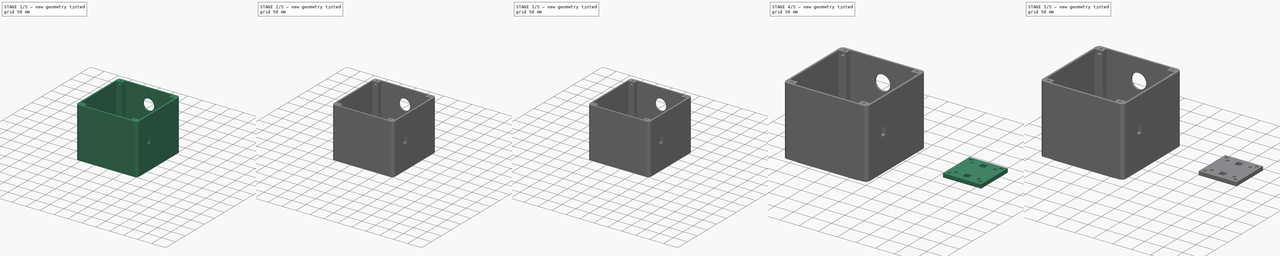
[diagram: build sequence overview — one tinted view per stage of 5, left to right]
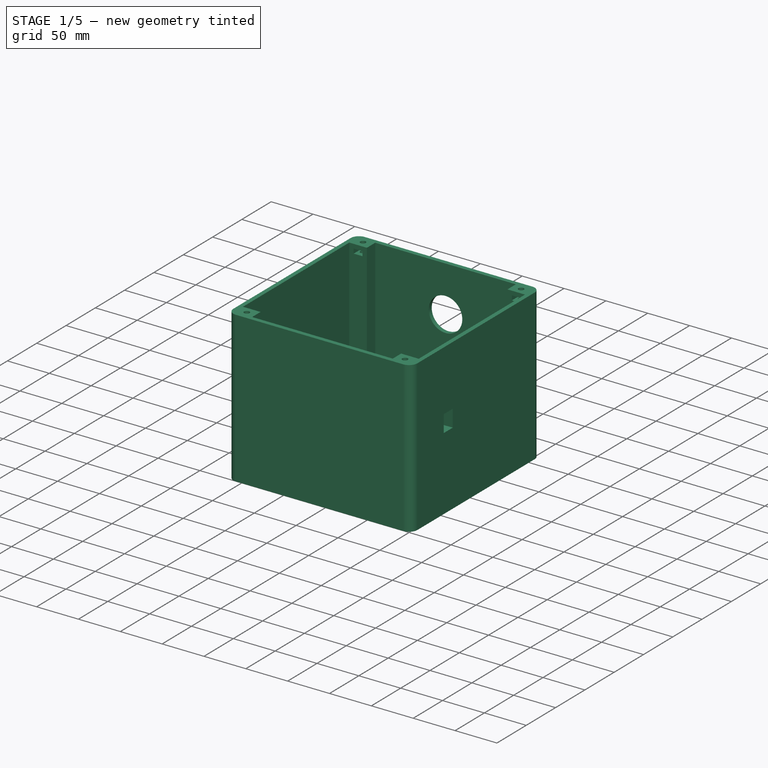
[diagram: stage 1 of 5 — iso view after this stage's code; geometry added in this stage tinted green]
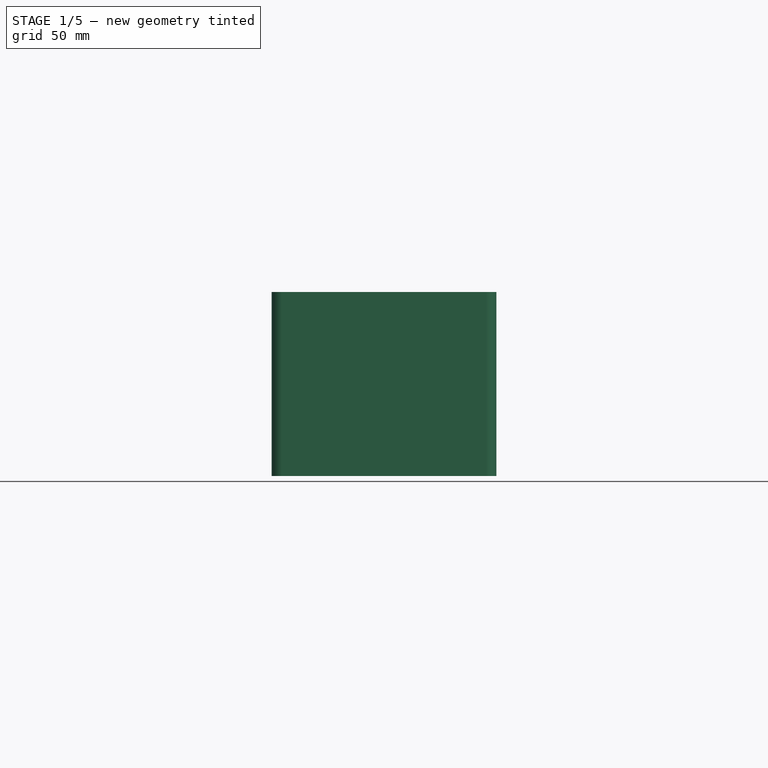
[diagram: stage 1 of 5 — front view after this stage's code; geometry added in this stage tinted green]
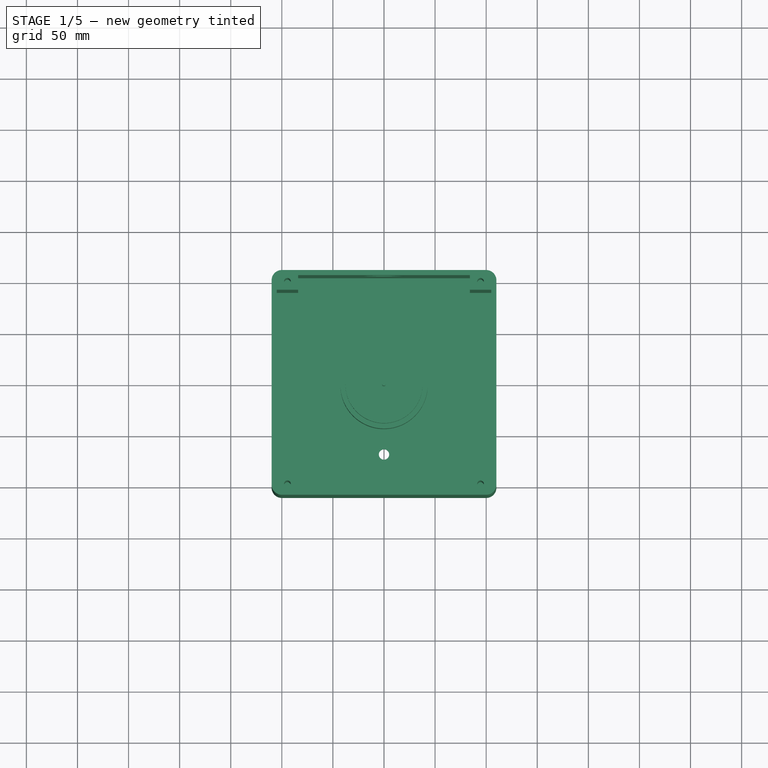
[diagram: stage 1 of 5 — top view after this stage's code; geometry added in this stage tinted green]
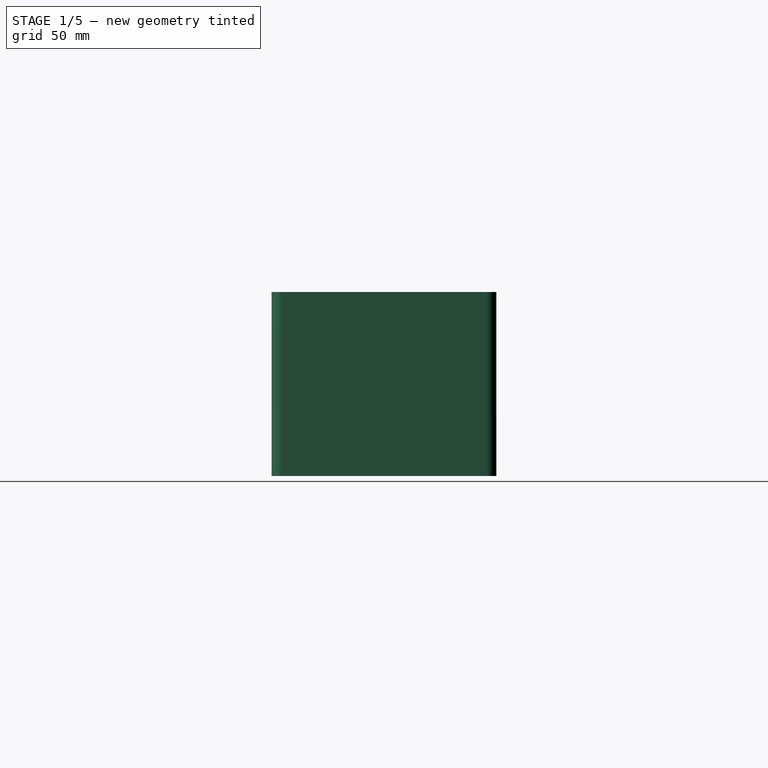
[diagram: stage 1 of 5 — right view after this stage's code; geometry added in this stage tinted green]
FCSTD DOCUMENT  (FreeCAD 0.21R33694 (Git))
Label: box2
License: All rights reserved
LicenseURL: https://en.wikipedia.org/wiki/All_rights_reserved
objects: Sketcher::SketchObject×50, PartDesign::Pocket×39, Part::Cylinder×12, PartDesign::Pad×11, Part::Cut×7, PartDesign::Body×6, PartDesign::Plane×4, Part::MultiFuse×4, Spreadsheet::Sheet×3, PartDesign::FeatureBase×3, Part::Box×3, Part::Feature×2
note: 191 computed .brp shape members not serialized (recipe doc carries the construction recipe); baked Part::Feature solids carry a one-line shape summary decoded from their .brp

FEATURE [Spreadsheet::Sheet] Spreadsheet
  cells = A1='box_sides; B1(box_sides)=200; A2='box_height; B2(box_height)=175; A3='box_wall_thickness; B3(box_wall_thickness)=5; A5='lid_nut_size; B5(lid_nut_size)=10.5; C5='flat to flat side (need to measure and put in here depdning on lid_nut_depth); A6='lid_nut_height; B6(lid_nut_height)=5.5; A7='lid_screw_size; B7(lid_screw_size)=6.4; A8='lid_nut_depth; B8(lid_nut_depth)=11.8; C8='point to point; A9='lid_nut_position; B9(lid_nut_position)=5; C9='how far into the box the mount for the lid nut is; A11='switch_y; B11(switch_y)=20.4; A12='switch_x; B12(switch_x)=15.4; A14='motor_diameter; B14(motor_diameter)=38; A15='bearing_mount_screw_diameter; B15(bearing_mount_screw_diameter)=4.4; A16='bearing_mount_screw_distance; B16(bearing_mount_screw_distance)=28; A18='motor_shaft_diameter; B18(motor_shaft_diameter)=8; A20='hole_distance; B20(hole_distance)=60; C20='For yagi mount; A21='hole_size; B21(hole_size)=8.4; A22='antenna_distance; B22(antenna_distance)=100
FEATURE [Sketcher::SketchObject] Sketch
  FullyConstrained = true
  MapMode = 5
  Support = -> [XY_Plane]
  expr: Constraints[16] = Spreadsheet.box_sides
  expr: Constraints[18] = Spreadsheet.box_sides / 2
  expr: Constraints[19] = Spreadsheet.box_sides / 2
  sketch-geometry (8):
    g0: LineSegment StartX=-100 StartY=110 StartZ=0 EndX=100 EndY=110 EndZ=0
    g1: LineSegment StartX=110 StartY=100 StartZ=0 EndX=110 EndY=-100 EndZ=0
    g2: LineSegment StartX=100 StartY=-110 StartZ=0 EndX=-100 EndY=-110 EndZ=0
    g3: LineSegment StartX=-110 StartY=-100 StartZ=0 EndX=-110 EndY=100 EndZ=0
    g4: ArcOfCircle CenterX=-100 CenterY=100 CenterZ=0 NormalX=0 NormalY=0 NormalZ=1 AngleXU=0 Radius=10 StartAngle=1.5708 EndAngle=3.14159
    g5: ArcOfCircle CenterX=100 CenterY=100 CenterZ=0 NormalX=0 NormalY=0 NormalZ=1 AngleXU=0 Radius=10 StartAngle=1e-16 EndAngle=1.5708
    g6: ArcOfCircle CenterX=-100 CenterY=-100 CenterZ=0 NormalX=0 NormalY=0 NormalZ=1 AngleXU=0 Radius=10 StartAngle=3.14159 EndAngle=4.71239
    g7: ArcOfCircle CenterX=100 CenterY=-100 CenterZ=0 NormalX=0 NormalY=0 NormalZ=1 AngleXU=0 Radius=10 StartAngle=4.71239 EndAngle=6.28319
  constraints (20):
    c: Horizontal(g0)
    c: Horizontal(g2)
    c: Vertical(g1)
    c: Vertical(g3)
    c: Tangent(g0,g4) = 1.5708
    c: Tangent(g3,g4) = 1.5708
    c: Tangent(g0,g5) = 1.5708
    c: Tangent(g1,g5) = 1.5708
    c: Tangent(g3,g6) = 1.5708
    c: Tangent(g2,g6) = 1.5708
    c: Tangent(g2,g7) = 1.5708
    c: Tangent(g1,g7) = 1.5708
    c: Radius(g4) = 10
    c: Radius(g5) = 10
    c: Radius(g6) = 10
    c: Radius(g7) = 10
    c: DistanceX(g2,g2) = 200
    c: Equal(g2,g3)
    c: DistanceX(g-1,g0) = 100
    c: DistanceY(g-1,g3) = 100
FEATURE [PartDesign::Pad] Pad
  Direction = (0,0,1)
  Length = 180
  Length2 = 10
  Profile = -> Sketch
  ReferenceAxis = -> Sketch [N_Axis]
  Type = 0
  expr: Length = Spreadsheet.box_height + Spreadsheet.box_wall_thickness
FEATURE [PartDesign::Plane] DatumPlane
  AttachmentOffset = pos=(0,0,180) rot=(0,0,1;0rad)
  Length = 264
  MapMode = 5
  Placement = pos=(0,0,180) rot=(0,0,1;0rad)
  ResizeMode = 0
  Support = -> [XY_Plane]
  Width = 264
  expr: .AttachmentOffset.Base.z = Spreadsheet.box_height + Spreadsheet.box_wall_thickness
FEATURE [Sketcher::SketchObject] Sketch001
  FullyConstrained = true
  MapMode = 5
  Placement = pos=(0,0,180) rot=(0,0,1;0rad)
  Support = -> [DatumPlane]
  expr: Constraints[10] = Spreadsheet.box_sides + 20 - Spreadsheet.box_wall_thickness * 2 - Spreadsheet.lid_nut_size * 4
  expr: Constraints[9] = Spreadsheet.box_sides + 20 - Spreadsheet.box_wall_thickness * 2
  sketch-geometry (4):
    g0: LineSegment StartX=-84 StartY=105 StartZ=0 EndX=84 EndY=105 EndZ=0
    g1: LineSegment StartX=84 StartY=105 StartZ=0 EndX=84 EndY=-105 EndZ=0
    g2: LineSegment StartX=84 StartY=-105 StartZ=0 EndX=-84 EndY=-105 EndZ=0
    g3: LineSegment StartX=-84 StartY=-105 StartZ=0 EndX=-84 EndY=105 EndZ=0
  constraints (11):
    c: Coincident(g0,g1)
    c: Coincident(g1,g2)
    c: Coincident(g2,g3)
    c: Coincident(g3,g0)
    c: Horizontal(g0)
    c: Horizontal(g2)
    c: Vertical(g1)
    c: Vertical(g3)
    c: Symmetric(g0,g1,g-1)
    c: DistanceY(g1,g1) = 210
    c: DistanceX(g0,g0) = 168
FEATURE [Sketcher::SketchObject] Sketch002
  FullyConstrained = true
  MapMode = 5
  Placement = pos=(0,0,180) rot=(0,0,1;0rad)
  Support = -> [DatumPlane]
  expr: Constraints[8] = Spreadsheet.box_sides + 20 - Spreadsheet.box_wall_thickness * 2 - Spreadsheet.lid_nut_size * 4 + ((Spreadsheet.box_sides + 20 - (Spreadsheet.box_sides + 20 - Spreadsheet.box_wall_thickness * 2 - Spreadsheet.lid_nut_size * 4)) / 2 - Spreadsheet.box_wall_thickness) * 2
  expr: Constraints[9] = Spreadsheet.box_sides + 20 - Spreadsheet.box_wall_thickness * 2 - Spreadsheet.lid_nut_depth * 2 - Spreadsheet.box_wall_thickness
  sketch-geometry (4):
    g0: LineSegment StartX=-105 StartY=90.7 StartZ=0 EndX=105 EndY=90.7 EndZ=0
    g1: LineSegment StartX=105 StartY=90.7 StartZ=0 EndX=105 EndY=-90.7 EndZ=0
    g2: LineSegment StartX=105 StartY=-90.7 StartZ=0 EndX=-105 EndY=-90.7 EndZ=0
    g3: LineSegment StartX=-105 StartY=-90.7 StartZ=0 EndX=-105 EndY=90.7 EndZ=0
  constraints (11):
    c: Coincident(g0,g1)
    c: Coincident(g1,g2)
    c: Coincident(g2,g3)
    c: Coincident(g3,g0)
    c: Horizontal(g0)
    c: Horizontal(g2)
    c: Vertical(g1)
    c: Vertical(g3)
    c: DistanceX(g0,g0) = 210
    c: DistanceY(g3,g3) = 181.4
    c: Symmetric(g0,g2,g-1)
FEATURE [PartDesign::Pocket] Pocket
  BaseFeature = -> Pad
  Direction = (0,0,-1)
  Length = 175
  Length2 = 5
  Profile = -> Sketch001
  ReferenceAxis = -> Sketch001 [N_Axis]
  Type = 0
  expr: Length = Spreadsheet.box_height
FEATURE [PartDesign::Pocket] Pocket001
  BaseFeature = -> Pocket
  Direction = (0,0,-1)
  Length = 175
  Length2 = 5
  Profile = -> Sketch002
  ReferenceAxis = -> Sketch002 [N_Axis]
  Type = 0
  expr: Length = Spreadsheet.box_height
FEATURE [Sketcher::SketchObject] Sketch003
  AttachmentOffset = pos=(0,0,-5) rot=(0,0,1;0rad)
  FullyConstrained = true
  MapMode = 5
  Placement = pos=(0,0,175) rot=(0,0,1;0rad)
  Support = -> [DatumPlane]
  expr: .AttachmentOffset.Base.z = -Spreadsheet.lid_nut_position
  expr: Constraints[17] = Spreadsheet.lid_nut_depth
  expr: Constraints[19] = Spreadsheet.box_sides / 2 + 10 - Spreadsheet.lid_nut_size - Spreadsheet.box_wall_thickness
  expr: Constraints[20] = Spreadsheet.box_sides / 2 + 10 - Spreadsheet.box_wall_thickness - Spreadsheet.lid_nut_depth / 2
  expr: Constraints[72] = Spreadsheet.lid_nut_depth
  expr: Constraints[73] = Spreadsheet.lid_nut_depth
  expr: Constraints[74] = Spreadsheet.lid_nut_depth
  expr: Constraints[75] = Spreadsheet.box_sides / 2 + 10 - Spreadsheet.lid_nut_size - Spreadsheet.box_wall_thickness
  expr: Constraints[76] = Spreadsheet.box_sides / 2 + 10 - Spreadsheet.box_wall_thickness - Spreadsheet.lid_nut_depth / 2
  expr: Constraints[78] = Spreadsheet.box_sides / 2 + 10 - Spreadsheet.lid_nut_size - Spreadsheet.box_wall_thickness
  expr: Constraints[79] = Spreadsheet.box_sides / 2 + 10 - Spreadsheet.lid_nut_size - Spreadsheet.box_wall_thickness
  expr: Constraints[80] = Spreadsheet.box_sides / 2 + 10 - Spreadsheet.box_wall_thickness - Spreadsheet.lid_nut_depth / 2
  expr: Constraints[81] = Spreadsheet.box_sides / 2 + 10 - Spreadsheet.box_wall_thickness - Spreadsheet.lid_nut_depth / 2
  sketch-geometry (28):
    g0: LineSegment StartX=89.3905 StartY=96.15 StartZ=0 EndX=94.5 EndY=93.2 EndZ=0
    g1: LineSegment StartX=94.5 StartY=93.2 StartZ=0 EndX=99.6095 EndY=96.15 EndZ=0
    g2: LineSegment StartX=99.6095 StartY=96.15 StartZ=0 EndX=99.6095 EndY=102.05 EndZ=0
    g3: LineSegment StartX=99.6095 StartY=102.05 StartZ=0 EndX=94.5 EndY=105 EndZ=0
    g4: LineSegment StartX=94.5 StartY=105 StartZ=0 EndX=89.3905 EndY=102.05 EndZ=0
    g5: LineSegment StartX=89.3905 StartY=102.05 StartZ=0 EndX=89.3905 EndY=96.15 EndZ=0
    g6: Circle CenterX=94.5 CenterY=99.1 CenterZ=0 NormalX=0 NormalY=0 NormalZ=1 AngleXU=0 Radius=5.9
    g7: LineSegment StartX=99.6095 StartY=-102.05 StartZ=0 EndX=99.6095 EndY=-96.15 EndZ=0
    g8: LineSegment StartX=99.6095 StartY=-96.15 StartZ=0 EndX=94.5 EndY=-93.2 EndZ=0
    g9: LineSegment StartX=94.5 StartY=-93.2 StartZ=0 EndX=89.3905 EndY=-96.15 EndZ=0
    g10: LineSegment StartX=89.3905 StartY=-96.15 StartZ=0 EndX=89.3905 EndY=-102.05 EndZ=0
    g11: LineSegment StartX=89.3905 StartY=-102.05 StartZ=0 EndX=94.5 EndY=-105 EndZ=0
    g12: LineSegment StartX=94.5 StartY=-105 StartZ=0 EndX=99.6095 EndY=-102.05 EndZ=0
    g13: Circle CenterX=94.5 CenterY=-99.1 CenterZ=0 NormalX=0 NormalY=0 NormalZ=1 AngleXU=0 Radius=5.9
    g14: LineSegment StartX=-89.3905 StartY=-102.05 StartZ=0 EndX=-89.3905 EndY=-96.15 EndZ=0
    g15: LineSegment StartX=-89.3905 StartY=-96.15 StartZ=0 EndX=-94.5 EndY=-93.2 EndZ=0
    g16: LineSegment StartX=-94.5 StartY=-93.2 StartZ=0 EndX=-99.6095 EndY=-96.15 EndZ=0
    g17: LineSegment StartX=-99.6095 StartY=-96.15 StartZ=0 EndX=-99.6095 EndY=-102.05 EndZ=0
    g18: LineSegment StartX=-99.6095 StartY=-102.05 StartZ=0 EndX=-94.5 EndY=-105 EndZ=0
    g19: LineSegment StartX=-94.5 StartY=-105 StartZ=0 EndX=-89.3905 EndY=-102.05 EndZ=0
    g20: Circle CenterX=-94.5 CenterY=-99.1 CenterZ=0 NormalX=0 NormalY=0 NormalZ=1 AngleXU=0 Radius=5.9
    g21: LineSegment StartX=-89.3905 StartY=96.15 StartZ=0 EndX=-89.3905 EndY=102.05 EndZ=0
    g22: LineSegment StartX=-89.3905 StartY=102.05 StartZ=0 EndX=-94.5 EndY=105 EndZ=0
    g23: LineSegment StartX=-94.5 StartY=105 StartZ=0 EndX=-99.6095 EndY=102.05 EndZ=0
    g24: LineSegment StartX=-99.6095 StartY=102.05 StartZ=0 EndX=-99.6095 EndY=96.15 EndZ=0
    g25: LineSegment StartX=-99.6095 StartY=96.15 StartZ=0 EndX=-94.5 EndY=93.2 EndZ=0
    g26: LineSegment StartX=-94.5 StartY=93.2 StartZ=0 EndX=-89.3905 EndY=96.15 EndZ=0
    g27: Circle CenterX=-94.5 CenterY=99.1 CenterZ=0 NormalX=0 NormalY=0 NormalZ=1 AngleXU=0 Radius=5.9
  constraints (68):
    c: Coincident(g0,g1)
    c: Coincident(g1,g2)
    c: Coincident(g2,g3)
    c: Coincident(g3,g4)
    c: Coincident(g4,g5)
    c: Coincident(g5,g0)
    c: Equal(g0, g1-g5) x5
    c: PointOnObject(g0,g6)
    c: PointOnObject(g1,g6)
    c: PointOnObject(g2,g6)
    c: PointOnObject(g3,g6)
    c: PointOnObject(g4,g6)
    c: PointOnObject(g5,g6)
    c: Diameter(g6) = 11.8
    c: DistanceY(g2,g4) = 0
    c: DistanceX(g-1,g6) = 94.5
    c: DistanceY(g-1,g6) = 99.1
    c: Coincident(g7,g8)
    c: Coincident(g8,g9)
    c: Coincident(g9,g10)
    c: Coincident(g10,g11)
    c: Coincident(g11,g12)
    c: Coincident(g12,g7)
    c: Equal(g7, g8-g12) x5
    c: PointOnObject(g7,g13)
    c: PointOnObject(g8,g13)
    c: PointOnObject(g9,g13)
    c: PointOnObject(g10,g13)
    c: PointOnObject(g11,g13)
    c: PointOnObject(g12,g13)
    c: Coincident(g14,g15)
    c: Coincident(g15,g16)
    c: Coincident(g16,g17)
    c: Coincident(g17,g18)
    c: Coincident(g18,g19)
    c: Coincident(g19,g14)
    c: Equal(g14, g15-g19) x5
    c: PointOnObject(g14,g20)
    c: PointOnObject(g15,g20)
    c: PointOnObject(g16,g20)
    c: PointOnObject(g17,g20)
    c: PointOnObject(g18,g20)
    c: PointOnObject(g19,g20)
    c: Coincident(g21,g22)
    c: Coincident(g22,g23)
    c: Coincident(g23,g24)
    c: Coincident(g24,g25)
    c: Coincident(g25,g26)
    c: Coincident(g26,g21)
    c: Equal(g21, g22-g26) x5
    c: PointOnObject(g21,g27)
    c: PointOnObject(g22,g27)
    c: PointOnObject(g23,g27)
    c: PointOnObject(g24,g27)
    c: PointOnObject(g25,g27)
    c: PointOnObject(g26,g27)
    c: Diameter(g13) = 11.8
    c: Diameter(g20) = 11.8
    c: Diameter(g27) = 11.8
    c: DistanceX(g27,g-1) = 94.5
    c: DistanceY(g-1,g27) = 99.1
    c: DistanceY(g23,g21) = 0
    c: DistanceX(g20,g-1) = 94.5
    c: DistanceX(g-1,g13) = 94.5
    c: DistanceY(g20,g-1) = 99.1
    c: DistanceY(g13,g-1) = 99.1
    c: DistanceY(g16,g14) = 0
    c: DistanceY(g7,g9) = 0
FEATURE [Sketcher::SketchObject] Sketch004
  AttachmentOffset = pos=(0,0,-5) rot=(0,0,1;0rad)
  FullyConstrained = true
  MapMode = 5
  Placement = pos=(0,0,175) rot=(0,0,1;0rad)
  Support = -> [DatumPlane]
  expr: .AttachmentOffset.Base.z = -Spreadsheet.lid_nut_position
  expr: Constraints[32] = Spreadsheet.lid_nut_size
  expr: Constraints[33] = Spreadsheet.box_sides / 2 + 10 - Spreadsheet.lid_nut_size - Spreadsheet.box_wall_thickness + Spreadsheet.lid_nut_size / 2
  expr: Constraints[34] = Spreadsheet.lid_nut_depth + 10
  expr: Constraints[35] = Spreadsheet.box_sides / 2 + 10 - Spreadsheet.box_wall_thickness - Spreadsheet.lid_nut_depth / 2
  expr: Constraints[36] = Spreadsheet.lid_nut_size
  expr: Constraints[37] = Spreadsheet.lid_nut_size
  expr: Constraints[38] = Spreadsheet.lid_nut_size
  expr: Constraints[39] = Spreadsheet.lid_nut_depth + 10
  expr: Constraints[40] = Spreadsheet.lid_nut_depth + 10
  expr: Constraints[41] = Spreadsheet.lid_nut_depth + 10
  expr: Constraints[42] = Spreadsheet.box_sides / 2 + 10 - Spreadsheet.lid_nut_size - Spreadsheet.box_wall_thickness + Spreadsheet.lid_nut_size / 2
  expr: Constraints[43] = Spreadsheet.box_sides / 2 + 10 - Spreadsheet.lid_nut_size - Spreadsheet.box_wall_thickness + Spreadsheet.lid_nut_size / 2
  expr: Constraints[44] = Spreadsheet.box_sides / 2 + 10 - Spreadsheet.lid_nut_size - Spreadsheet.box_wall_thickness + Spreadsheet.lid_nut_size / 2
  expr: Constraints[45] = Spreadsheet.box_sides / 2 + 10 - Spreadsheet.box_wall_thickness - Spreadsheet.lid_nut_depth / 2
  expr: Constraints[46] = Spreadsheet.box_sides / 2 + 10 - Spreadsheet.box_wall_thickness - Spreadsheet.lid_nut_depth / 2
  expr: Constraints[47] = Spreadsheet.box_sides / 2 + 10 - Spreadsheet.box_wall_thickness - Spreadsheet.lid_nut_depth / 2
  sketch-geometry (16):
    g0: LineSegment StartX=-99.75 StartY=99.1 StartZ=0 EndX=-89.25 EndY=99.1 EndZ=0
    g1: LineSegment StartX=-89.25 StartY=99.1 StartZ=0 EndX=-89.25 EndY=77.3 EndZ=0
    g2: LineSegment StartX=-89.25 StartY=77.3 StartZ=0 EndX=-99.75 EndY=77.3 EndZ=0
    g3: LineSegment StartX=-99.75 StartY=77.3 StartZ=0 EndX=-99.75 EndY=99.1 EndZ=0
    g4: LineSegment StartX=89.25 StartY=99.1 StartZ=0 EndX=99.75 EndY=99.1 EndZ=0
    g5: LineSegment StartX=99.75 StartY=99.1 StartZ=0 EndX=99.75 EndY=77.3 EndZ=0
    g6: LineSegment StartX=99.75 StartY=77.3 StartZ=0 EndX=89.25 EndY=77.3 EndZ=0
    g7: LineSegment StartX=89.25 StartY=77.3 StartZ=0 EndX=89.25 EndY=99.1 EndZ=0
    g8: LineSegment StartX=-99.75 StartY=-77.3 StartZ=0 EndX=-89.25 EndY=-77.3 EndZ=0
    g9: LineSegment StartX=-89.25 StartY=-77.3 StartZ=0 EndX=-89.25 EndY=-99.1 EndZ=0
    g10: LineSegment StartX=-89.25 StartY=-99.1 StartZ=0 EndX=-99.75 EndY=-99.1 EndZ=0
    g11: LineSegment StartX=-99.75 StartY=-99.1 StartZ=0 EndX=-99.75 EndY=-77.3 EndZ=0
    g12: LineSegment StartX=89.25 StartY=-77.3 StartZ=0 EndX=99.75 EndY=-77.3 EndZ=0
    g13: LineSegment StartX=99.75 StartY=-77.3 StartZ=0 EndX=99.75 EndY=-99.1 EndZ=0
    g14: LineSegment StartX=99.75 StartY=-99.1 StartZ=0 EndX=89.25 EndY=-99.1 EndZ=0
    g15: LineSegment StartX=89.25 StartY=-99.1 StartZ=0 EndX=89.25 EndY=-77.3 EndZ=0
  constraints (48):
    c: Coincident(g0,g1)
    c: Coincident(g1,g2)
    c: Coincident(g2,g3)
    c: Coincident(g3,g0)
    c: Horizontal(g0)
    c: Horizontal(g2)
    c: Vertical(g1)
    c: Vertical(g3)
    c: Coincident(g4,g5)
    c: Coincident(g5,g6)
    c: Coincident(g6,g7)
    c: Coincident(g7,g4)
    c: Horizontal(g4)
    c: Horizontal(g6)
    c: Vertical(g5)
    c: Vertical(g7)
    c: Coincident(g8,g9)
    c: Coincident(g9,g10)
    c: Coincident(g10,g11)
    c: Coincident(g11,g8)
    c: Horizontal(g8)
    c: Horizontal(g10)
    c: Vertical(g9)
    c: Vertical(g11)
    c: Coincident(g12,g13)
    c: Coincident(g13,g14)
    c: Coincident(g14,g15)
    c: Coincident(g15,g12)
    c: Horizontal(g12)
    c: Horizontal(g14)
    c: Vertical(g13)
    c: Vertical(g15)
    c: DistanceX(g0,g0) = 10.5
    c: DistanceX(g0,g-1) = 99.75
    c: DistanceY(g1,g1) = 21.8
    c: DistanceY(g-1,g0) = 99.1
    c: DistanceX(g4,g4) = 10.5
    c: DistanceX(g12,g12) = 10.5
    c: DistanceX(g8,g8) = 10.5
    c: DistanceY(g9,g9) = 21.8
    c: DistanceY(g15,g15) = 21.8
    c: DistanceY(g7,g7) = 21.8
    c: DistanceX(g8,g-1) = 99.75
    c: DistanceX(g-1,g12) = 99.75
    c: DistanceX(g-1,g4) = 99.75
    c: DistanceY(g10,g-1) = 99.1
    c: DistanceY(g14,g-1) = 99.1
    c: DistanceY(g-1,g4) = 99.1
FEATURE [PartDesign::Pocket] Pocket002
  BaseFeature = -> Pocket001
  Direction = (0,0,-1)
  Length = 5.5
  Length2 = 5
  Profile = -> Sketch003
  ReferenceAxis = -> Sketch003 [N_Axis]
  Type = 0
  expr: Length = Spreadsheet.lid_nut_height
FEATURE [PartDesign::Pocket] Pocket003
  BaseFeature = -> Pocket002
  Direction = (0,0,-1)
  Length = 5.5
  Length2 = 5
  Profile = -> Sketch004
  ReferenceAxis = -> Sketch004 [N_Axis]
  Type = 0
  expr: Length = Spreadsheet.lid_nut_height
FEATURE [Sketcher::SketchObject] Sketch005
  FullyConstrained = true
  MapMode = 5
  Placement = pos=(0,0,180) rot=(0,0,1;0rad)
  Support = -> [DatumPlane]
  expr: Constraints[0] = Spreadsheet.lid_screw_size
  expr: Constraints[10] = Spreadsheet.box_sides / 2 + 10 - Spreadsheet.box_wall_thickness - Spreadsheet.lid_nut_depth / 2
  expr: Constraints[11] = Spreadsheet.box_sides / 2 + 10 - Spreadsheet.box_wall_thickness - Spreadsheet.lid_nut_depth / 2
  expr: Constraints[1] = Spreadsheet.lid_screw_size
  expr: Constraints[2] = Spreadsheet.lid_screw_size
  expr: Constraints[3] = Spreadsheet.lid_screw_size
  expr: Constraints[4] = Spreadsheet.box_sides / 2 + 10 - Spreadsheet.lid_nut_size - Spreadsheet.box_wall_thickness
  expr: Constraints[5] = Spreadsheet.box_sides / 2 + 10 - Spreadsheet.lid_nut_size - Spreadsheet.box_wall_thickness
  expr: Constraints[6] = Spreadsheet.box_sides / 2 + 10 - Spreadsheet.lid_nut_size - Spreadsheet.box_wall_thickness
  expr: Constraints[7] = Spreadsheet.box_sides / 2 + 10 - Spreadsheet.lid_nut_size - Spreadsheet.box_wall_thickness
  expr: Constraints[8] = Spreadsheet.box_sides / 2 + 10 - Spreadsheet.box_wall_thickness - Spreadsheet.lid_nut_depth / 2
  expr: Constraints[9] = Spreadsheet.box_sides / 2 + 10 - Spreadsheet.box_wall_thickness - Spreadsheet.lid_nut_depth / 2
  sketch-geometry (4):
    g0: Circle CenterX=-94.5 CenterY=99.1 CenterZ=0 NormalX=0 NormalY=0 NormalZ=1 AngleXU=0 Radius=3.2
    g1: Circle CenterX=94.5 CenterY=99.1 CenterZ=0 NormalX=0 NormalY=0 NormalZ=1 AngleXU=0 Radius=3.2
    g2: Circle CenterX=-94.5 CenterY=-99.1 CenterZ=0 NormalX=0 NormalY=0 NormalZ=1 AngleXU=0 Radius=3.2
    g3: Circle CenterX=94.5 CenterY=-99.1 CenterZ=0 NormalX=0 NormalY=0 NormalZ=1 AngleXU=0 Radius=3.2
  constraints (12):
    c: Diameter(g0) = 6.4
    c: Diameter(g1) = 6.4
    c: Diameter(g2) = 6.4
    c: Diameter(g3) = 6.4
    c: DistanceX(g0,g-1) = 94.5
    c: DistanceX(g2,g-1) = 94.5
    c: DistanceX(g-1,g3) = 94.5
    c: DistanceX(g-1,g1) = 94.5
    c: DistanceY(g-1,g0) = 99.1
    c: DistanceY(g2,g-1) = 99.1
    c: DistanceY(g3,g-1) = 99.1
    c: DistanceY(g-1,g1) = 99.1
FEATURE [PartDesign::Pocket] Pocket004
  BaseFeature = -> Pocket003
  Direction = (0,0,-1)
  Length = 100
  Length2 = 5
  Profile = -> Sketch005
  ReferenceAxis = -> Sketch005 [N_Axis]
  Type = 0
  expr: Length = 100
FEATURE [PartDesign::Plane] DatumPlane001
  AttachmentOffset = pos=(0,0,110) rot=(0,0,1;0rad)
  Length = 262.474
  MapMode = 5
  Placement = pos=(110,-2.44e-14,2.44e-14) rot=(0.57735,0.57735,0.57735;2.0944rad)
  ResizeMode = 0
  Support = -> [YZ_Plane]
  Width = 247.474
  expr: .AttachmentOffset.Base.z = Spreadsheet.box_sides / 2 + 10
FEATURE [Sketcher::SketchObject] Sketch006
  FullyConstrained = true
  MapMode = 5
  Placement = pos=(110,-2.44e-14,2.44e-14) rot=(0.57735,0.57735,0.57735;2.0944rad)
  Support = -> [DatumPlane001]
  expr: Constraints[10] = Spreadsheet.switch_y
  expr: Constraints[11] = Spreadsheet.switch_x
  expr: Constraints[8] = Spreadsheet.box_sides / 4 - Spreadsheet.switch_y / 2
  expr: Constraints[9] = Spreadsheet.box_height / 2
  sketch-geometry (4):
    g0: LineSegment StartX=-55.2 StartY=107.9 StartZ=0 EndX=-39.8 EndY=107.9 EndZ=0
    g1: LineSegment StartX=-39.8 StartY=107.9 StartZ=0 EndX=-39.8 EndY=87.5 EndZ=0
    g2: LineSegment StartX=-39.8 StartY=87.5 StartZ=0 EndX=-55.2 EndY=87.5 EndZ=0
    g3: LineSegment StartX=-55.2 StartY=87.5 StartZ=0 EndX=-55.2 EndY=107.9 EndZ=0
  constraints (12):
    c: Coincident(g0,g1)
    c: Coincident(g1,g2)
    c: Coincident(g2,g3)
    c: Coincident(g3,g0)
    c: Horizontal(g0)
    c: Horizontal(g2)
    c: Vertical(g1)
    c: Vertical(g3)
    c: DistanceX(g1,g-1) = 39.8
    c: DistanceY(g-1,g1) = 87.5
    c: DistanceY(g3,g3) = 20.4
    c: DistanceX(g0,g0) = 15.4
FEATURE [PartDesign::Plane] DatumPlane002
  AttachmentOffset = pos=(0,0,-110) rot=(0,0,1;0rad)
  Length = 262.474
  MapMode = 5
  Placement = pos=(0,110,2.44e-14) rot=(1,0,0;1.5708rad)
  ResizeMode = 0
  Support = -> [XZ_Plane]
  Width = 247.474
  expr: .AttachmentOffset.Base.z = -(Spreadsheet.box_sides / 2 + 10)
FEATURE [PartDesign::Pocket] Pocket005
  BaseFeature = -> Pocket004
  Direction = (-1,1e-16,-1e-16)
  Length = 5
  Length2 = 5
  Profile = -> Sketch006
  ReferenceAxis = -> Sketch006 [N_Axis]
  Type = 0
  expr: Length = Spreadsheet.box_wall_thickness
FEATURE [Sketcher::SketchObject] Sketch007
  FullyConstrained = true
  MapMode = 5
  Placement = pos=(0,110,2.44e-14) rot=(1,0,0;1.5708rad)
  Support = -> [DatumPlane002]
  expr: Constraints[1] = Spreadsheet.box_height - 50
  sketch-geometry (1):
    g0: Circle CenterX=0 CenterY=125 CenterZ=0 NormalX=0 NormalY=0 NormalZ=1 AngleXU=0 Radius=20
  constraints (3):
    c: DistanceX(g-1,g0) = 0
    c: DistanceY(g-1,g0) = 125
    c: Diameter(g0) = 40
FEATURE [PartDesign::Pocket] Pocket006
  BaseFeature = -> Pocket005
  Direction = (0,1,2e-16)
  Length = 5
  Length2 = 5
  Profile = -> Sketch007
  ReferenceAxis = -> Sketch007 [N_Axis]
  Reversed = true
  Type = 0
  expr: Length = Spreadsheet.box_wall_thickness
FEATURE [Sketcher::SketchObject] Sketch008
  FullyConstrained = true
  MapMode = 5
  Placement = pos=(0,0,180) rot=(0,0,1;0rad)
  Support = -> [DatumPlane]
  expr: Constraints[10] = Spreadsheet.bearing_mount_screw_distance + 8
  expr: Constraints[11] = Spreadsheet.bearing_mount_screw_distance
  expr: Constraints[12] = Spreadsheet.bearing_mount_screw_distance
  expr: Constraints[13] = Spreadsheet.bearing_mount_screw_distance
  expr: Constraints[16] = Spreadsheet.bearing_mount_screw_distance + 5
  expr: Constraints[17] = Spreadsheet.bearing_mount_screw_distance
  expr: Constraints[1] = Spreadsheet.motor_diameter
  expr: Constraints[6] = Spreadsheet.bearing_mount_screw_diameter
  expr: Constraints[7] = Spreadsheet.bearing_mount_screw_diameter
  expr: Constraints[8] = Spreadsheet.bearing_mount_screw_diameter
  expr: Constraints[9] = Spreadsheet.bearing_mount_screw_diameter
  sketch-geometry (5):
    g0: Circle CenterX=0 CenterY=-7 CenterZ=0 NormalX=0 NormalY=0 NormalZ=1 AngleXU=0 Radius=19
    g1: Circle CenterX=0 CenterY=28 CenterZ=0 NormalX=0 NormalY=0 NormalZ=1 AngleXU=0 Radius=2.2
    g2: Circle CenterX=28 CenterY=0 CenterZ=0 NormalX=0 NormalY=0 NormalZ=1 AngleXU=0 Radius=2.2
    g3: Circle CenterX=-28 CenterY=0 CenterZ=0 NormalX=0 NormalY=0 NormalZ=1 AngleXU=0 Radius=2.2
    g4: Circle CenterX=0 CenterY=-33 CenterZ=0 NormalX=0 NormalY=0 NormalZ=1 AngleXU=0 Radius=2.2
  constraints (18):
    c: Coincident(g0,g-1)
    c: Diameter(g0) = 38
    c: PointOnObject(g1,g-2)
    c: PointOnObject(g2,g-1)
    c: PointOnObject(g3,g-1)
    c: PointOnObject(g4,g-2)
    c: Diameter(g1) = 4.4
    c: Diameter(g2) = 4.4
    c: Diameter(g4) = 4.4
    c: Diameter(g3) = 4.4
    c: DistanceY(g4,g0) = 36
    c: DistanceX(g0,g2) = 28
    c: DistanceY(g0,g1) = 28
    c: DistanceX(g3,g0) = 28
    c: DistanceX(g-1,g0) = 0
    c: DistanceY(g0,g-1) = 7
    c: DistanceY(g4,g-1) = 33
    c: DistanceY(g-1,g1) = 28
FEATURE [PartDesign::Pocket] Pocket007
  BaseFeature = -> Pocket006
  Direction = (0,0,-1)
  Length = 5
  Length2 = 5
  Profile = -> Sketch008
  ReferenceAxis = -> Sketch008 [N_Axis]
  Type = 1
FEATURE [Part::Cylinder] Cylinder007
  Angle = 360
  AttacherType = Attacher::AttachEngine3D
  FirstAngle = 0
  Height = 63
  Radius = 37.75
  SecondAngle = 0
  expr: Height = <<Sheet>>.base_height
  expr: Radius = <<Sheet>>.bearing_outside / 2 - 5
FEATURE [Part::Cylinder] Cylinder013
  Angle = 360
  AttacherType = Attacher::AttachEngine3D
  FirstAngle = 0
  Height = 45
  Radius = 42.75
  SecondAngle = 0
  expr: Height = <<Sheet>>.base_height - <<Sheet>>.plug_to_base_gap - <<Sheet>>.plug_lip
  expr: Radius = <<Sheet>>.bearing_outside / 2
FEATURE [Part::MultiFuse] Fusion006
  Shapes = -> [Cylinder013,Cylinder007]
FEATURE [Sketcher::SketchObject] Sketch011
  AttachmentOffset = pos=(0,-1,-60) rot=(0,0,1;0rad)
  FullyConstrained = false
  MapMode = 5
  Placement = pos=(0,60,-1) rot=(1,0,0;1.5708rad)
  Support = -> [XZ_Plane001]
  expr: Constraints[0] = Spreadsheet001.motor_securing_screw_size
  expr: Constraints[11] = 63 - Spreadsheet001.motor_securing_screw_size
  expr: Constraints[8] = Spreadsheet001.motor_securing_screw_size * 2
  expr: Constraints[9] = Spreadsheet001.motor_securing_screw_size
  sketch-geometry (4):
    g0: ArcOfCircle CenterX=6.56025e-11 CenterY=59.6 CenterZ=0 NormalX=0 NormalY=0 NormalZ=1 AngleXU=0 Radius=3.4 StartAngle=6.28318 EndAngle=9.42478
    g1: LineSegment StartX=-3.4 StartY=59.6 StartZ=0 EndX=-3.4 EndY=0 EndZ=0
    g2: LineSegment StartX=-3.4 StartY=0 StartZ=0 EndX=3.4 EndY=0 EndZ=0
    g3: LineSegment StartX=3.4 StartY=59.6 StartZ=0 EndX=3.4 EndY=0 EndZ=0
  constraints (12):
    c: Radius(g0) = 3.4
    c: Coincident(g1,g0)
    c: Vertical(g1)
    c: Coincident(g2,g1)
    c: Horizontal(g2)
    c: Coincident(g3,g0)
    c: Coincident(g3,g2)
    c: Vertical(g3)
    c: DistanceX(g2,g2) = 6.8
    c: DistanceX(g1,g-1) = 3.4
    c: DistanceY(g-1,g1) = 0
    c: DistanceY(g1,g0) = 59.6
FEATURE [Spreadsheet::Sheet] Spreadsheet001  label="Sheet"
  cells = A1='bearing_inside; B1(bearing_inside)==E1 - E4 * 2 + 0.9; D1='true_bearing_inside_diameter; E1=45; G1='case_mounting_screw_distance; H1(case_mounting_screw_distance)=25; J1='tripod_nut_width; K1(tripod_nut_width)=24; A2='bearing_outside; B2(bearing_outside)=85.5; D2='true_bearing_outside_diameter; E2=85; G2='case_mounting_screw_size; H2(case_mounting_screw_size)=4.4; J2='tripod_nut_length; K2(tripod_nut_length)=27.2; A3='bearing_height; B3(bearing_height)=19; J3='tripod_nut_height; K3(tripod_nut_height)=14.2; A4='plug_lip; B4(plug_lip)=15; D4='margin; E4=0.2; G4='motor_securing_screw_size; H4(motor_securing_screw_size)=3.4; J4='tripod_screw_diameter; K4(tripod_screw_diameter)=16.2; A5='plug_height; B5(plug_height)=60; G5='motor_securing_nut_size; H5(motor_securing_nut_size)=6.5; J5='tripod_screw_length; K5(tripod_screw_length)=15; A6='plug_overlap; B6(plug_overlap)=5; D6='true_motor_shaft_diameter; E6(true_motor_shaft_diameter)=2; G6='motor_securing_nut_width; H6(motor_securing_nut_width)=3.5; A7='motor_shaft_diameter; B7(motor_shaft_diameter)==true_motor_shaft_diameter + 0.4; D7='true_motor_shaft_narrow; E7(true_motor_shaft_narrow)=3.5; J7='hall_effect_x; K7(hall_effect_x)=4.5; A8='motor_shaft_narrow; B8(motor_shaft_narrow)=2; C8(motor_shaft_slice_position)==motor_shaft_narrow - motor_shaft_diameter / 1.9; D8='(motor_shaft_slice_position); G8='mounting_pole_diameter; H8(mounting_pole_diameter)=17.4; J8='hall_effect_y; K8(hall_effect_y)=2; A9='motor_shaft_length; B9(motor_shaft_length)=15.6; J9='hall_effect_distance; K9(hall_effect_distance)=65; A10='motor_lip_diameter; B10(motor_lip_diameter)=3; G10='he_magnet_diameter; H10(he_magnet_diameter)=5.2; A11='motor_lip_height; B11(motor_lip_height)=3.2; G11='he_magnet_height; H11(he_magnet_height)=4.2; A12='base_thickness; B12(base_thickness)=5; A13='plug_to_base_gap; B13(plug_to_base_gap)=3; A14='motor_shaft_hole_depth; B14(motor_shaft_hole_depth)==motor_shaft_length + motor_lip_height - base_thickness - plug_to_base_gap; A15='lower_part_height; B15(lower_part_height)=40; A16='base_height; B16(base_height)==plug_to_base_gap + plug_height
FEATURE [Part::Cylinder] Cylinder008
  Angle = 360
  AttacherType = Attacher::AttachEngine3D
  FirstAngle = 0
  Height = 3.2
  Placement = pos=(0,0,64.8) rot=(0,0,1;0rad)
  Radius = 2
  SecondAngle = 0
  expr: .Placement.Base.z = <<Sheet>>.base_height + <<Sheet>>.base_thickness - <<Sheet>>.motor_lip_height
  expr: Height = <<Sheet>>.motor_lip_height
  expr: Radius = <<Sheet>>.motor_lip_diameter / 2 + 0.5
FEATURE [Part::Cylinder] Cylinder009
  Angle = 360
  AttacherType = Attacher::AttachEngine3D
  FirstAngle = 0
  Height = 30
  Placement = pos=(0,0,63) rot=(0,0,1;0rad)
  Radius = 1.7
  SecondAngle = 0
  expr: .Placement.Base.z = <<Sheet>>.base_height
  expr: Radius = <<Sheet>>.motor_shaft_diameter / 2 + 0.5
FEATURE [Part::MultiFuse] Fusion005
  Shapes = -> [Cylinder009,Cylinder008]
FEATURE [PartDesign::Body] Body001  label="MountToCase"
  BaseFeature = -> Cut009
  Group = -> [BaseFeature,Sketch009,Pocket008,Sketch011,Pocket010,Sketch017,Pad002,Sketch018,Pocket016,Sketch020,Pocket018,Sketch021,Pocket019,Sketch022,Pocket020,Sketch023,Pocket021,Sketch051,Pad010]
  Origin = -> Origin001
  Placement = pos=(0,0,-68) rot=(0,0,1;0rad)
  Tip = -> Pad010
FEATURE [Sketcher::SketchObject] Sketch052
  FullyConstrained = false
  MapMode = 5
  Placement = pos=(0,0,5) rot=(0,0,1;0rad)
  Support = -> [Pocket007]
  expr: Constraints[1] = Spreadsheet001.hall_effect_distance + 2.5
  sketch-geometry (1):
    g0: Circle CenterX=0 CenterY=-67.5 CenterZ=0 NormalX=0 NormalY=0 NormalZ=1 AngleXU=0 Radius=5.04984
  constraints (2):
    c: DistanceX(g0,g-1) = 0
    c: DistanceY(g0,g-1) = 67.5
FEATURE [PartDesign::Pocket] Pocket042
  BaseFeature = -> Pocket007
  Direction = (0,0,-1)
  Length = 5
  Length2 = 5
  Profile = -> Sketch052
  ReferenceAxis = -> Sketch052 [N_Axis]
  Type = 0
FEATURE [PartDesign::Body] Body
  Group = -> [Sketch,Pad,DatumPlane,Sketch001,Sketch002,Pocket,Pocket001,Sketch003,Sketch004,Pocket002,Pocket003,Sketch005,Pocket004,DatumPlane001,DatumPlane002,Sketch006,Pocket005,Sketch007,Pocket006,Sketch008,Pocket007,Sketch052,Pocket042]
  Origin = -> Origin
  Tip = -> Pocket042
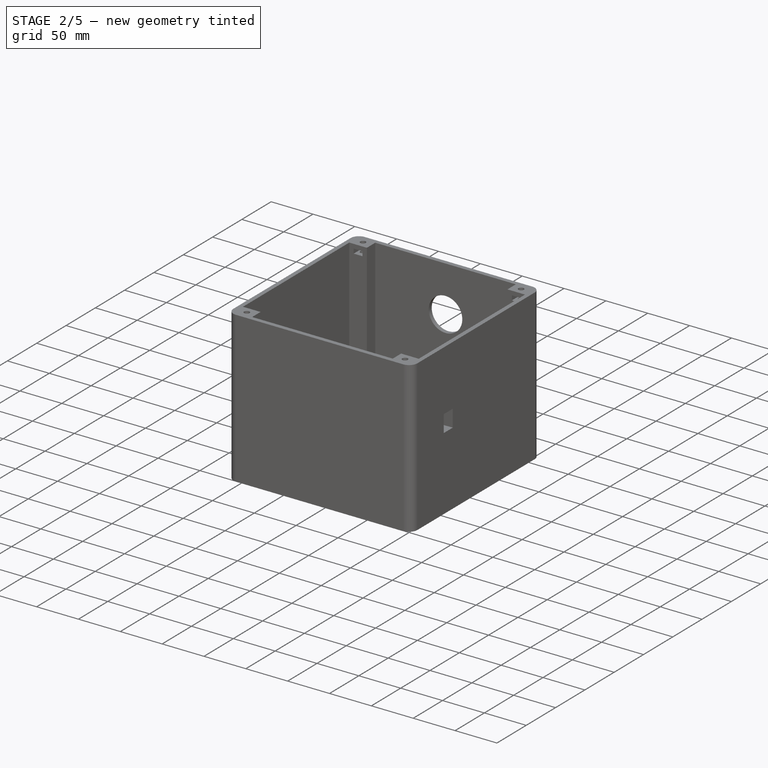
[diagram: stage 2 of 5 — iso view after this stage's code; geometry added in this stage tinted green]
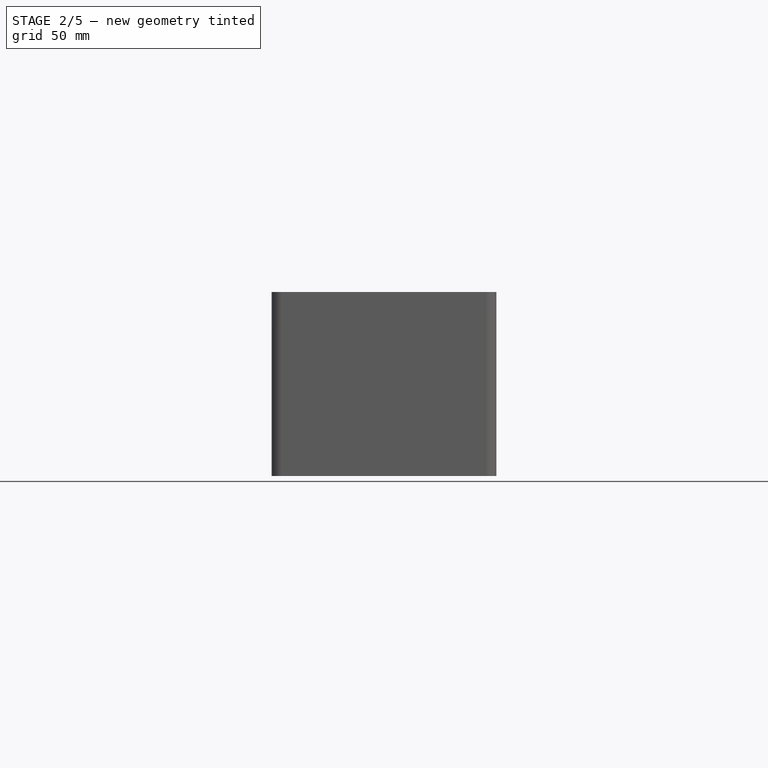
[diagram: stage 2 of 5 — front view after this stage's code; geometry added in this stage tinted green]
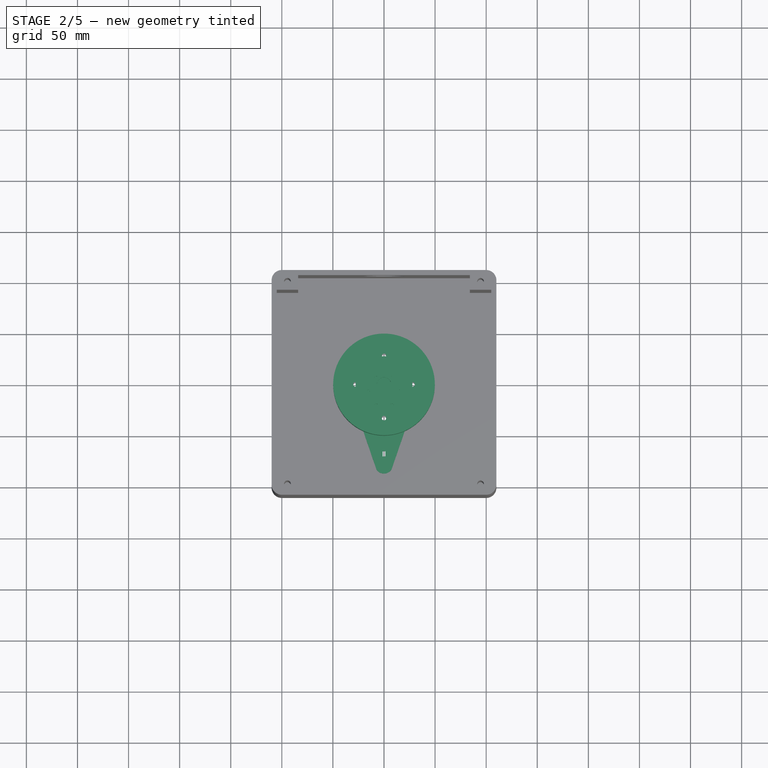
[diagram: stage 2 of 5 — top view after this stage's code; geometry added in this stage tinted green]
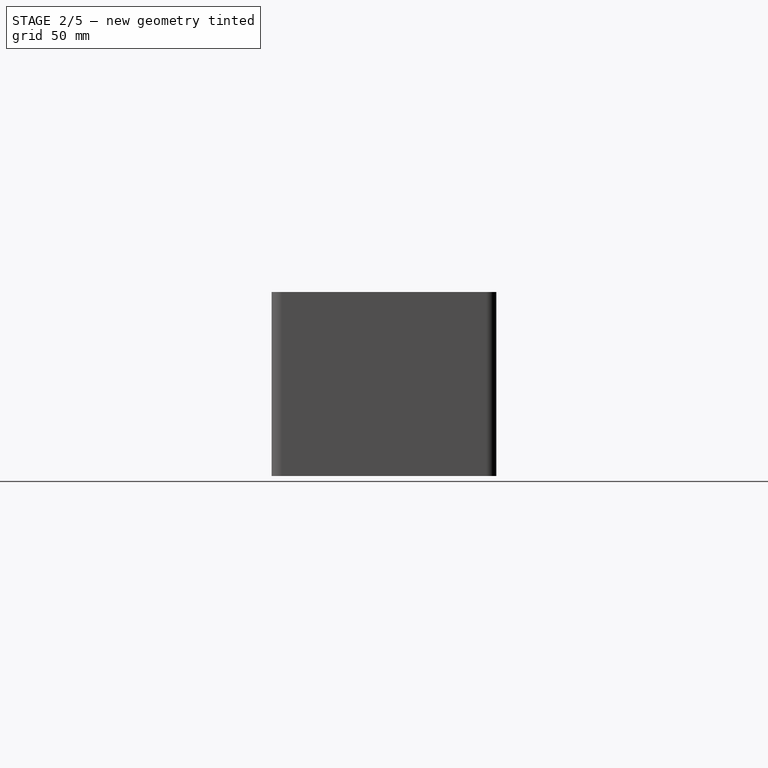
[diagram: stage 2 of 5 — right view after this stage's code; geometry added in this stage tinted green]
FEATURE [Part::Cylinder] Cylinder012
  Angle = 360
  AttacherType = Attacher::AttachEngine3D
  FirstAngle = 0
  Height = 32.5
  Placement = pos=(0,0,35.5) rot=(0,0,1;0rad)
  Radius = 49.75
  SecondAngle = 0
  expr: .Placement.Base.z = <<Sheet>>.plug_height - <<Sheet>>.plug_lip - <<Sheet>>.bearing_height / 2
  expr: Height = <<Sheet>>.plug_lip + <<Sheet>>.plug_to_base_gap + <<Sheet>>.bearing_height / 2 + <<Sheet>>.base_thickness
  expr: Radius = <<Sheet>>.bearing_outside / 2 + 7
FEATURE [Part::Cut] Cut008
  Base = -> Cylinder012
  Tool = -> Fusion006
FEATURE [Part::Cut] Cut009  label="base"
  Base = -> Cut008
  Tool = -> Fusion005
FEATURE [PartDesign::FeatureBase] BaseFeature
  BaseFeature = -> Cut009
FEATURE [Sketcher::SketchObject] Sketch009
  FullyConstrained = true
  MapMode = 5
  Placement = pos=(0,0,68) rot=(0,0,1;0rad)
  Support = -> [Cut009]
  expr: Constraints[0] = Spreadsheet001.case_mounting_screw_size
  expr: Constraints[1] = Spreadsheet001.case_mounting_screw_size
  expr: Constraints[2] = Spreadsheet001.case_mounting_screw_size
  expr: Constraints[3] = Spreadsheet001.case_mounting_screw_size
  expr: Constraints[6] = Spreadsheet.bearing_mount_screw_distance
  expr: Constraints[7] = Spreadsheet.bearing_mount_screw_distance
  expr: Constraints[8] = Spreadsheet.bearing_mount_screw_distance
  expr: Constraints[9] = Spreadsheet.bearing_mount_screw_distance + 5
  sketch-geometry (4):
    g0: Circle CenterX=0 CenterY=28 CenterZ=0 NormalX=0 NormalY=0 NormalZ=1 AngleXU=0 Radius=2.2
    g1: Circle CenterX=28 CenterY=0 CenterZ=0 NormalX=0 NormalY=0 NormalZ=1 AngleXU=0 Radius=2.2
    g2: Circle CenterX=0 CenterY=-33 CenterZ=0 NormalX=0 NormalY=0 NormalZ=1 AngleXU=0 Radius=2.2
    g3: Circle CenterX=-28 CenterY=0 CenterZ=0 NormalX=0 NormalY=0 NormalZ=1 AngleXU=0 Radius=2.2
  constraints (12):
    c: Diameter(g3) = 4.4
    c: Diameter(g2) = 4.4
    c: Diameter(g0) = 4.4
    c: Diameter(g1) = 4.4
    c: DistanceX(g2,g-1) = 0
    c: DistanceX(g-1,g0) = 0
    c: DistanceX(g3,g-1) = 28
    c: DistanceX(g-1,g1) = 28
    c: DistanceY(g-1,g0) = 28
    c: DistanceY(g2,g-1) = 33
    c: DistanceY(g-1,g3) = 0
    c: DistanceY(g-1,g1) = 0
FEATURE [PartDesign::Pocket] Pocket008
  BaseFeature = -> BaseFeature
  Direction = (0,0,-1)
  Length = 5
  Length2 = 5
  Profile = -> Sketch009
  ReferenceAxis = -> Sketch009 [N_Axis]
  Type = 0
FEATURE [Part::Cylinder] Cylinder  label="Cylinder_plug_inner"
  Angle = 360
  AttacherType = Attacher::AttachEngine3D
  FirstAngle = 0
  Height = 60
  Radius = 22.75
  SecondAngle = 0
  expr: Height = <<Sheet001>>.plug_height
  expr: Radius = <<Sheet001>>.bearing_inside / 2
FEATURE [Part::Cylinder] Cylinder001  label="Cylinder_plug_lip"
  Angle = 360
  AttacherType = Attacher::AttachEngine3D
  FirstAngle = 0
  Height = 15
  Placement = pos=(0,0,45) rot=(0,0,1;0rad)
  Radius = 27.75
  SecondAngle = 0
  expr: .Placement.Base.z = <<Sheet001>>.plug_height - <<Sheet001>>.plug_lip
  expr: Height = <<Sheet001>>.plug_lip
  expr: Radius = <<Sheet001>>.bearing_inside / 2 + <<Sheet001>>.plug_overlap
FEATURE [Part::MultiFuse] Fusion
  Shapes = -> [Cylinder001,Cylinder]
FEATURE [PartDesign::Body] Body002
  BaseFeature = -> Cut003
  Group = -> [BaseFeature001,Sketch025,Pocket023,Sketch026,Pocket024,Sketch027,Pocket025,Sketch028,Pocket026,Sketch029,Pocket027,DatumPlane003,Sketch030,Pocket028,Sketch050,Pocket041]
  Origin = -> Origin002
  Placement = pos=(0,0,-67) rot=(0,0,1;0rad)
  Tip = -> Pocket041
FEATURE [Sketcher::SketchObject] Sketch051
  FullyConstrained = true
  MapMode = 5
  Placement = pos=(0,0,35.5) rot=(1,0,0;3.14159rad)
  sketch-geometry (4):
    g0: LineSegment StartX=3.4 StartY=-42 StartZ=0 EndX=3.4 EndY=-47 EndZ=0
    g1: LineSegment StartX=-3.4 StartY=-47 StartZ=0 EndX=-3.4 EndY=-42 EndZ=0
    g2: ArcOfCircle CenterX=0 CenterY=0 CenterZ=0 NormalX=0 NormalY=0 NormalZ=1 AngleXU=0 Radius=42.1374 StartAngle=4.79317 EndAngle=10.9148
    g3: ArcOfCircle CenterX=0 CenterY=0 CenterZ=0 NormalX=0 NormalY=0 NormalZ=1 AngleXU=0 Radius=47.1228 StartAngle=4.7846 EndAngle=10.9234
  constraints (12):
    c: Vertical(g0)
    c: Vertical(g1)
    c: DistanceX(g1,g-1) = 3.4
    c: DistanceX(g-1,g0) = 3.4
    c: DistanceY(g1,g-1) = 42
    c: DistanceY(g1,g1) = 5
    c: Coincident(g2,g-1)
    c: Coincident(g2,g1)
    c: Coincident(g2,g0)
    c: Coincident(g3,g2)
    c: Coincident(g3,g1)
    c: Coincident(g3,g0)
FEATURE [PartDesign::Pocket] Pocket010
  BaseFeature = -> Pocket008
  Direction = (0,1,2e-16)
  Length = 25
  Length2 = 5
  Profile = -> Sketch011
  ReferenceAxis = -> Sketch011 [N_Axis]
  Reversed = true
  Type = 0
FEATURE [Sketcher::SketchObject] Sketch017
  FullyConstrained = false
  MapMode = 5
  Placement = pos=(0,0,35.5) rot=(1,0,0;3.14159rad)
  Support = -> [Pocket010]
  sketch-geometry (4):
    g0: ArcOfCircle CenterX=0 CenterY=0 CenterZ=0 NormalX=0 NormalY=0 NormalZ=1 AngleXU=0 Radius=49.6997 StartAngle=1.15156 EndAngle=1.99025
    g1: LineSegment StartX=-7.40759 StartY=82.7524 StartZ=0 EndX=-20.2407 EndY=45.3914 EndZ=0
    g2: LineSegment StartX=7.35862 StartY=82.7568 StartZ=0 EndX=20.2311 EndY=45.3957 EndZ=0
    g3: ArcOfCircle CenterX=-0.023113 CenterY=78.0809 CenterZ=0 NormalX=0 NormalY=0 NormalZ=1 AngleXU=0 Radius=8.73807 StartAngle=0.564645 EndAngle=2.57753
  constraints (5):
    c: Coincident(g0,g-1)
    c: Coincident(g1,g0)
    c: Coincident(g2,g0)
    c: Coincident(g3,g1)
    c: Coincident(g3,g2)
FEATURE [PartDesign::Pad] Pad002
  BaseFeature = -> Pocket010
  Direction = (0,0,-1)
  Length = 5
  Length2 = 10
  Profile = -> Sketch017
  ReferenceAxis = -> Sketch017 [N_Axis]
  Reversed = true
  Type = 0
FEATURE [Sketcher::SketchObject] Sketch018
  FullyConstrained = true
  MapMode = 5
  Placement = pos=(0,0,63) rot=(1,0,0;3.14159rad)
  Support = -> [Pad002]
  expr: Constraints[10] = 1.25
  expr: Constraints[11] = <<Sheet>>.hall_effect_distance
  expr: Constraints[8] = 2.5
  expr: Constraints[9] = 5
  sketch-geometry (4):
    g0: LineSegment StartX=-1.25 StartY=70 StartZ=0 EndX=1.25 EndY=70 EndZ=0
    g1: LineSegment StartX=1.25 StartY=70 StartZ=0 EndX=1.25 EndY=65 EndZ=0
    g2: LineSegment StartX=1.25 StartY=65 StartZ=0 EndX=-1.25 EndY=65 EndZ=0
    g3: LineSegment StartX=-1.25 StartY=65 StartZ=0 EndX=-1.25 EndY=70 EndZ=0
  constraints (12):
    c: Coincident(g0,g1)
    c: Coincident(g1,g2)
    c: Coincident(g2,g3)
    c: Coincident(g3,g0)
    c: Horizontal(g0)
    c: Horizontal(g2)
    c: Vertical(g1)
    c: Vertical(g3)
    c: DistanceX(g0,g0) = 2.5
    c: DistanceY(g3,g3) = 5
    c: DistanceX(g2,g-1) = 1.25
    c: DistanceY(g-1,g2) = 65
FEATURE [PartDesign::Pocket] Pocket016
  BaseFeature = -> Pad002
  Direction = (0,0,1)
  Length = 0
  Length2 = 5
  Profile = -> Sketch018
  ReferenceAxis = -> Sketch018 [N_Axis]
  Reversed = true
  Type = 1
FEATURE [PartDesign::Pocket] Pocket018
  BaseFeature = -> Pocket016
  Direction = (0,0,-1)
  Length = 5
  Length2 = 5
  Profile = -> Sketch020
  ReferenceAxis = -> Sketch020 [N_Axis]
  Type = 0
FEATURE [Sketcher::SketchObject] Sketch021
  FullyConstrained = true
  MapMode = 5
  Placement = pos=(0,0,63) rot=(1,0,0;3.14159rad)
  Support = -> [Pocket018]
  expr: Constraints[10] = Spreadsheet.bearing_mount_screw_distance
  expr: Constraints[11] = Spreadsheet.bearing_mount_screw_distance + 5
  expr: Constraints[4] = Spreadsheet.bearing_mount_screw_diameter * 2
  expr: Constraints[5] = Spreadsheet.bearing_mount_screw_diameter * 2
  expr: Constraints[6] = Spreadsheet.bearing_mount_screw_diameter * 2
  expr: Constraints[7] = Spreadsheet.bearing_mount_screw_diameter * 2
  expr: Constraints[8] = Spreadsheet.bearing_mount_screw_distance
  expr: Constraints[9] = Spreadsheet.bearing_mount_screw_distance
  sketch-geometry (4):
    g0: Circle CenterX=0 CenterY=33 CenterZ=0 NormalX=0 NormalY=0 NormalZ=1 AngleXU=0 Radius=4.4
    g1: Circle CenterX=28 CenterY=0 CenterZ=0 NormalX=0 NormalY=0 NormalZ=1 AngleXU=0 Radius=4.4
    g2: Circle CenterX=-28 CenterY=0 CenterZ=0 NormalX=0 NormalY=0 NormalZ=1 AngleXU=0 Radius=4.4
    g3: Circle CenterX=0 CenterY=-28 CenterZ=0 NormalX=0 NormalY=0 NormalZ=1 AngleXU=0 Radius=4.4
  constraints (12):
    c: PointOnObject(g0,g-2)
    c: PointOnObject(g1,g-1)
    c: PointOnObject(g2,g-1)
    c: PointOnObject(g3,g-2)
    c: Diameter(g0) = 8.8
    c: Diameter(g1) = 8.8
    c: Diameter(g3) = 8.8
    c: Diameter(g2) = 8.8
    c: DistanceX(g2,g-1) = 28
    c: DistanceX(g-1,g1) = 28
    c: DistanceY(g3,g-1) = 28
    c: DistanceY(g-1,g0) = 33
FEATURE [PartDesign::Pocket] Pocket019
  BaseFeature = -> Pocket018
  Direction = (0,0,1)
  Length = 2.5
  Length2 = 5
  Profile = -> Sketch021
  ReferenceAxis = -> Sketch021 [N_Axis]
  Type = 0
FEATURE [Sketcher::SketchObject] Sketch022
  FullyConstrained = true
  MapMode = 5
  Placement = pos=(0,0,68) rot=(0,0,1;0rad)
  Support = -> [Pocket019]
  expr: Constraints[1] = 14
  sketch-geometry (1):
    g0: Circle CenterX=0 CenterY=0 CenterZ=0 NormalX=0 NormalY=0 NormalZ=1 AngleXU=0 Radius=7
  constraints (2):
    c: Coincident(g0,g-1)
    c: Diameter(g0) = 14
FEATURE [PartDesign::Pocket] Pocket020
  BaseFeature = -> Pocket019
  Direction = (0,0,-1)
  Length = 5
  Length2 = 5
  Profile = -> Sketch022
  ReferenceAxis = -> Sketch022 [N_Axis]
  Type = 0
FEATURE [Sketcher::SketchObject] Sketch023
  FullyConstrained = false
  MapMode = 5
  Placement = pos=(0,0,68) rot=(0,0,1;0rad)
  Support = -> [Pocket020]
  expr: Constraints[10] = 15.5 / 2
  expr: Constraints[11] = 7 + 13.4
  expr: Constraints[12] = 15.5 / 2
  expr: Constraints[14] = 15.5 / 2
  expr: Constraints[2] = 3.4
  expr: Constraints[5] = 3.4
  expr: Constraints[6] = 3.4
  expr: Constraints[7] = 3.4
  expr: Constraints[9] = 7 + 13.4
  sketch-geometry (6):
    g0: Circle CenterX=-15.5 CenterY=-7 CenterZ=0 NormalX=0 NormalY=0 NormalZ=1 AngleXU=0 Radius=1.7
    g1: Circle CenterX=15.5 CenterY=-7 CenterZ=0 NormalX=0 NormalY=0 NormalZ=1 AngleXU=0 Radius=1.7
    g2: Circle CenterX=-7.75 CenterY=-20.4 CenterZ=0 NormalX=0 NormalY=0 NormalZ=1 AngleXU=0 Radius=1.7
    g3: Circle CenterX=7.75 CenterY=-20.4 CenterZ=0 NormalX=0 NormalY=0 NormalZ=1 AngleXU=0 Radius=1.7
    g4: Circle CenterX=-7.75 CenterY=6.45 CenterZ=0 NormalX=0 NormalY=0 NormalZ=1 AngleXU=0 Radius=1.7
    g5: Circle CenterX=7.75 CenterY=6.45 CenterZ=0 NormalX=0 NormalY=0 NormalZ=1 AngleXU=0 Radius=1.7
  constraints (17):
    c: DistanceY(g0,g-1) = 7
    c: DistanceX(g0,g-1) = 15.5
    c: Diameter(g1) = 3.4
    c: DistanceX(g-1,g1) = 15.5
    c: DistanceY(g1,g-1) = 7
    c: Diameter(g5) = 3.4
    c: Diameter(g4) = 3.4
    c: Diameter(g2) = 3.4
    c: Diameter(g3) = 3.4
    c: DistanceY(g2,g-1) = 20.4
    c: DistanceX(g2,g-1) = 7.75
    c: DistanceY(g3,g-1) = 20.4
    c: DistanceX(g-1,g3) = 7.75
    c: DistanceX(g4,g-1) = 7.75
    c: DistanceX(g-1,g5) = 7.75
    c: DistanceY(g-1,g4) = 6.45
    c: DistanceY(g4,g5) = 0
FEATURE [PartDesign::Pocket] Pocket021
  BaseFeature = -> Pocket020
  Direction = (0,0,-1)
  Length = 5
  Length2 = 5
  Profile = -> Sketch023
  ReferenceAxis = -> Sketch023 [N_Axis]
  Type = 0
FEATURE [PartDesign::Pad] Pad010
  BaseFeature = -> Pocket021
  Direction = (0,0,-1)
  Length = 15
  Length2 = 10
  Profile = -> Sketch051
  ReferenceAxis = -> Sketch051 [N_Axis]
  Reversed = true
  Type = 0
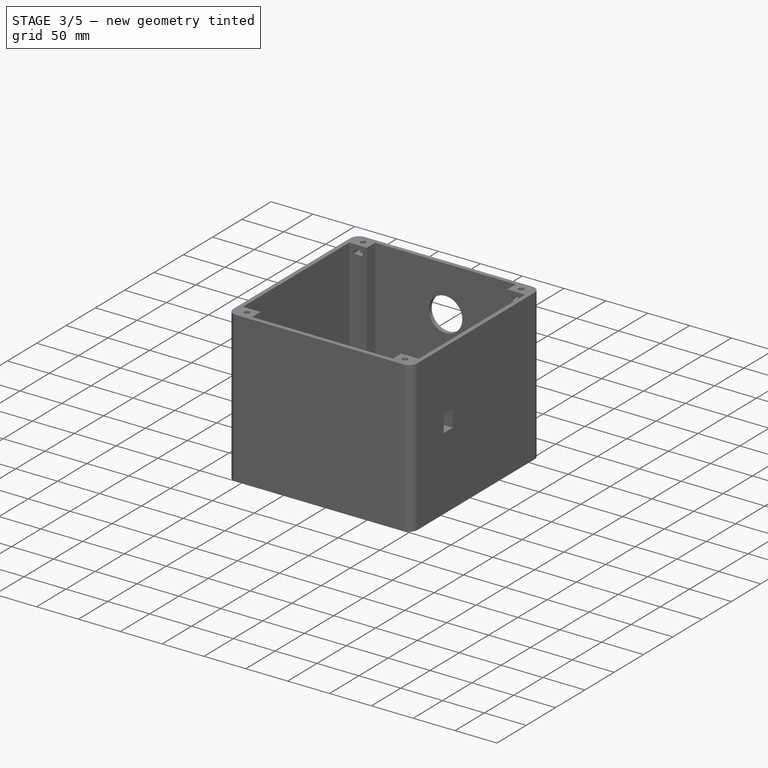
[diagram: stage 3 of 5 — iso view after this stage's code; geometry added in this stage tinted green]
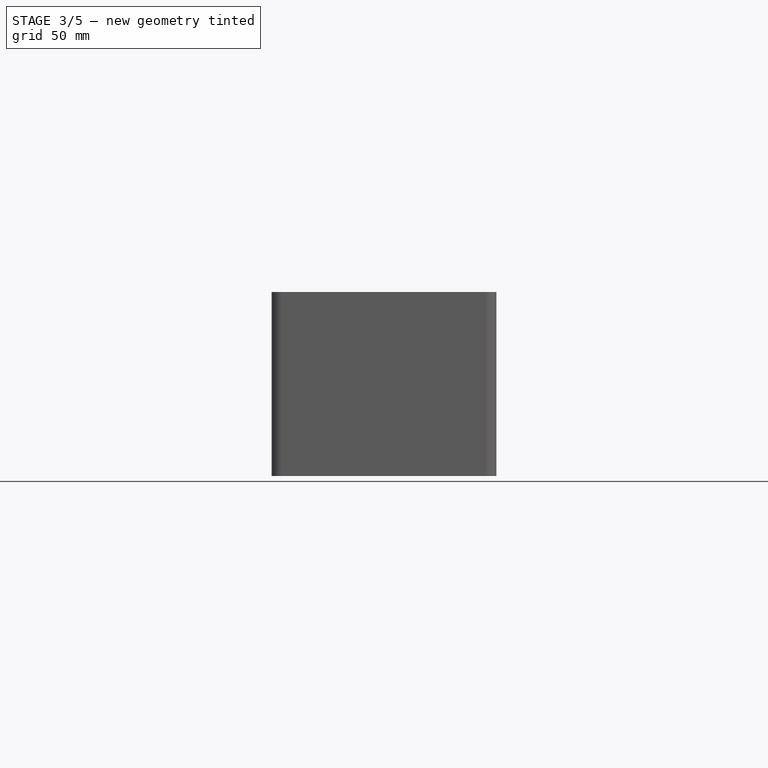
[diagram: stage 3 of 5 — front view after this stage's code; geometry added in this stage tinted green]
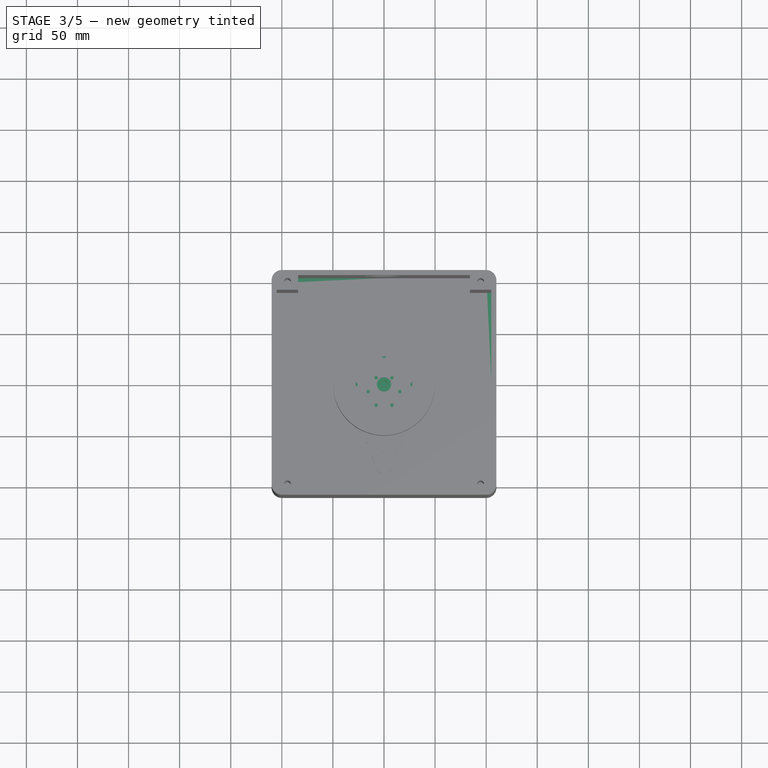
[diagram: stage 3 of 5 — top view after this stage's code; geometry added in this stage tinted green]
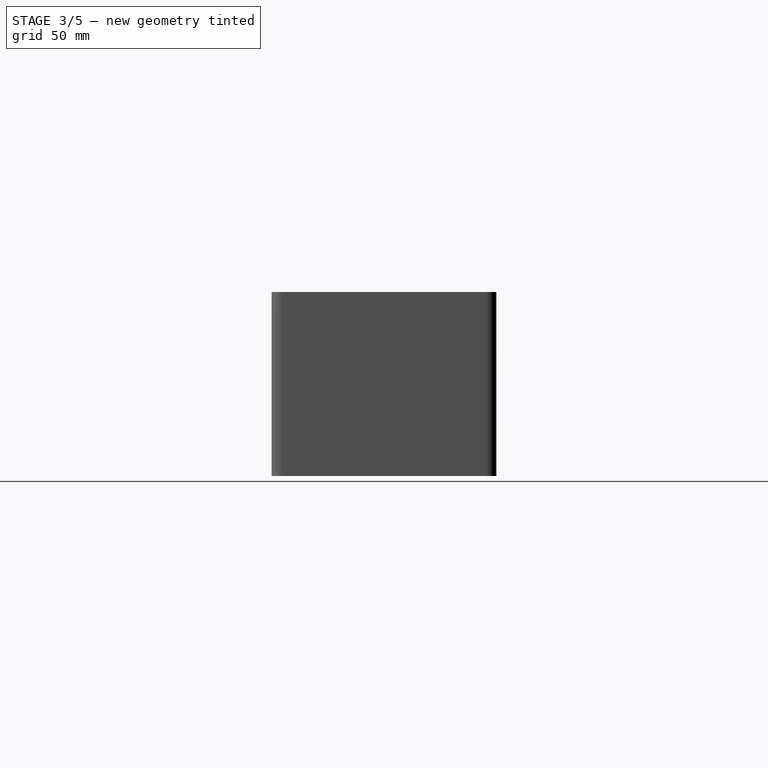
[diagram: stage 3 of 5 — right view after this stage's code; geometry added in this stage tinted green]
FEATURE [Sketcher::SketchObject] Sketch020
  FullyConstrained = true
  MapMode = 5
  Placement = pos=(0,0,68) rot=(0,0,1;0rad)
  expr: Constraints[1] = Spreadsheet.motor_shaft_diameter
  sketch-geometry (1):
    g0: Circle CenterX=0 CenterY=0 CenterZ=0 NormalX=0 NormalY=0 NormalZ=1 AngleXU=0 Radius=4
  constraints (2):
    c: Coincident(g0,g-1)
    c: Diameter(g0) = 8
FEATURE [Part::Feature] Part__Feature  label="37d-gearmotor-100-131-150-encoder"
  Placement = pos=(-19.9,-7,20) rot=(1,0,0;3.14159rad)
  shape: bbox 37.67 x 41.66 x 94.6 mm, 649 faces (baked)
FEATURE [Part::Feature] Part__Feature001  label="hub02-6mm"
  Placement = pos=(0,0,-13.5) rot=(0,0,1;0.523599rad)
  shape: bbox 25.4 x 25.4 x 9.2 mm, 304 faces (baked)
FEATURE [Part::Box] Box  label="Cube"
  AttacherType = Attacher::AttachEngine3D
  Height = 10.8
  Length = 10
  Placement = pos=(-5,1.53684,0) rot=(0,0,1;0rad)
  Width = 10
  expr: .Placement.Base.y = <<Sheet001>>.motor_shaft_slice_position
  expr: Height = <<Cylinder_shaft_hole>>.Height
FEATURE [Part::Box] Box002  label="CutCube001"
  AttacherType = Attacher::AttachEngine3D
  Height = 10
  Length = 80
  Placement = pos=(-40,-0.5,-1) rot=(0,0,1;0rad)
  Width = 100
FEATURE [Part::Cylinder] Cylinder002  label="Cylinder_shaft_hole"
  Angle = 360
  AttacherType = Attacher::AttachEngine3D
  FirstAngle = 0
  Height = 10.8
  Radius = 2.15
  SecondAngle = 0
  expr: .Placement.Base.z = 0
  expr: Height = <<Sheet001>>.motor_shaft_hole_depth
  expr: Radius = <<Sheet001>>.motor_shaft_diameter / 2
FEATURE [Part::Cut] Cut  label="Motor_shaft_hole"
  Base = -> Cylinder002
  Placement = pos=(0,0,49.2) rot=(0,0,1;0rad)
  Tool = -> Box
  expr: .Placement.Base.z = <<Sheet001>>.plug_height - <<Sheet001>>.motor_shaft_hole_depth
FEATURE [Part::Cut] Cut001  label="plugwithoutcut"
  Base = -> Fusion
  Tool = -> Cut
FEATURE [Part::Cut] Cut003  label="plugwithoutbolt"
  Base = -> Cut001
  Placement = pos=(135,0,0) rot=(0,0,1;0rad)
  Tool = -> Box002
FEATURE [Spreadsheet::Sheet] Spreadsheet002  label="Sheet001"
  cells = A1='bearing_inside; B1(bearing_inside)==E1 - E4 * 2 + 0.9; D1='true_bearing_inside_diameter; E1=45; G1='case_mounting_screw_distance; H1(case_mounting_screw_distance)=25; J1='tripod_nut_width; K1(tripod_nut_width)=24; A2='bearing_outside; B2(bearing_outside)==E2 + E4 * 2; D2='true_bearing_outside_diameter; E2=85; G2='case_mounting_screw_size; H2(case_mounting_screw_size)=4.4; J2='tripod_nut_length; K2(tripod_nut_length)=27.2; A3='bearing_height; B3(bearing_height)=19; J3='tripod_nut_height; K3(tripod_nut_height)=14.2; A4='plug_lip; B4(plug_lip)=15; D4='margin; E4=0.2; G4='motor_securing_screw_size; H4(motor_securing_screw_size)=3.4; J4='tripod_screw_diameter; K4(tripod_screw_diameter)=16.2; A5='plug_height; B5(plug_height)=60; G5='motor_securing_nut_size; H5(motor_securing_nut_size)=6.5; J5='tripod_screw_length; K5(tripod_screw_length)=15; A6='plug_overlap; B6(plug_overlap)=5; D6='true_motor_shaft_diameter; E6(true_motor_shaft_diameter)=4; G6='motor_securing_nut_width; H6(motor_securing_nut_width)=3.5; A7='motor_shaft_diameter; B7(motor_shaft_diameter)==true_motor_shaft_diameter + 0.3; D7='true_motor_shaft_narrow; E7(true_motor_shaft_narrow)=3.5; J7='hall_effect_x; K7(hall_effect_x)=4.5; A8='motor_shaft_narrow; B8(motor_shaft_narrow)==true_motor_shaft_narrow + 0.3; C8(motor_shaft_slice_position)==motor_shaft_narrow - motor_shaft_diameter / 1.9; D8='(motor_shaft_slice_position); G8='mounting_pole_diameter; H8(mounting_pole_diameter)=17.4; J8='hall_effect_y; K8(hall_effect_y)=2; A9='motor_shaft_length; B9(motor_shaft_length)=15.6; J9='hall_effect_distance; K9(hall_effect_distance)=65; A10='motor_lip_diameter; B10(motor_lip_diameter)=7; G10='he_magnet_diameter; H10(he_magnet_diameter)=5.2; A11='motor_lip_height; B11(motor_lip_height)=3.2; G11='he_magnet_height; H11(he_magnet_height)=4.2; A12='base_thickness; B12(base_thickness)=5; A13='plug_to_base_gap; B13(plug_to_base_gap)=3; A14='motor_shaft_hole_depth; B14(motor_shaft_hole_depth)==motor_shaft_length + motor_lip_height - base_thickness - plug_to_base_gap; A15='lower_part_height; B15(lower_part_height)=40; A16='base_height; B16(base_height)==plug_to_base_gap + plug_height
FEATURE [PartDesign::FeatureBase] BaseFeature001
  BaseFeature = -> Cut003
FEATURE [Sketcher::SketchObject] Sketch025
  FullyConstrained = false
  MapMode = 5
  Placement = pos=(0,0,60) rot=(0,0,1;0rad)
  Support = -> [BaseFeature001]
  sketch-geometry (1):
    g0: Circle CenterX=0 CenterY=0 CenterZ=0 NormalX=0 NormalY=0 NormalZ=1 AngleXU=0 Radius=48.8537
  constraints (1):
    c: Coincident(g0,g-1)
FEATURE [PartDesign::Pocket] Pocket023
  BaseFeature = -> BaseFeature001
  Direction = (0,0,-1)
  Length = 4
  Length2 = 5
  Profile = -> Sketch025
  ReferenceAxis = -> Sketch025 [N_Axis]
  Type = 0
FEATURE [Sketcher::SketchObject] Sketch026
  FullyConstrained = true
  MapMode = 5
  Placement = pos=(0,0,56) rot=(0,0,1;0rad)
  Support = -> [Pocket023]
  sketch-geometry (1):
    g0: Circle CenterX=0 CenterY=0 CenterZ=0 NormalX=0 NormalY=0 NormalZ=1 AngleXU=0 Radius=13.5
  constraints (2):
    c: Coincident(g0,g-1)
    c: Diameter(g0) = 27
FEATURE [PartDesign::Pocket] Pocket024
  BaseFeature = -> Pocket023
  Direction = (0,0,-1)
  Length = 5.5
  Length2 = 5
  Profile = -> Sketch026
  ReferenceAxis = -> Sketch026 [N_Axis]
  Type = 0
FEATURE [Sketcher::SketchObject] Sketch027
  FullyConstrained = true
  MapMode = 5
  Placement = pos=(0,0,56) rot=(0,0,1;0rad)
  Support = -> [Pocket024]
  expr: Constraints[1] = Spreadsheet.motor_shaft_diameter
  sketch-geometry (1):
    g0: Circle CenterX=0 CenterY=0 CenterZ=0 NormalX=0 NormalY=0 NormalZ=1 AngleXU=0 Radius=4
  constraints (2):
    c: Coincident(g0,g-1)
    c: Diameter(g0) = 8
FEATURE [PartDesign::Pocket] Pocket025
  BaseFeature = -> Pocket024
  Direction = (0,0,-1)
  Length = 20
  Length2 = 5
  Profile = -> Sketch027
  ReferenceAxis = -> Sketch027 [N_Axis]
  Type = 0
  expr: Length = 20
FEATURE [Sketcher::SketchObject] Sketch028
  FullyConstrained = true
  MapMode = 5
  Placement = pos=(0,0,56) rot=(0,0,1;0rad)
  Support = -> [Pocket025]
  expr: Constraints[15] = 8.25 mm
  expr: Constraints[16] = 8.25 mm
  expr: Constraints[17] = 8.25 mm
  expr: Constraints[1] = 3.4 mm
  expr: Constraints[3] = 3.4 mm
  sketch-geometry (6):
    g0: Circle CenterX=-4.75 CenterY=8.25 CenterZ=0 NormalX=0 NormalY=0 NormalZ=1 AngleXU=0 Radius=1.7
    g1: Circle CenterX=4.75 CenterY=8.25 CenterZ=0 NormalX=0 NormalY=0 NormalZ=1 AngleXU=0 Radius=1.7
    g2: Circle CenterX=4.75 CenterY=-8.25 CenterZ=0 NormalX=0 NormalY=0 NormalZ=1 AngleXU=0 Radius=1.7
    g3: Circle CenterX=-4.75 CenterY=-8.25 CenterZ=0 NormalX=0 NormalY=0 NormalZ=1 AngleXU=0 Radius=1.7
    g4: Circle CenterX=-9.5 CenterY=0 CenterZ=0 NormalX=0 NormalY=0 NormalZ=1 AngleXU=0 Radius=1.7
    g5: Circle CenterX=9.5 CenterY=0 CenterZ=0 NormalX=0 NormalY=0 NormalZ=1 AngleXU=0 Radius=1.7
  constraints (18):
    c: Diameter(g0) = 3.4
    c: Diameter(g1) = 3.4
    c: Diameter(g5) = 3.4
    c: Diameter(g2) = 3.4
    c: Diameter(g3) = 3.4
    c: Diameter(g4) = 3.4
    c: DistanceX(g4,g-1) = 9.5
    c: DistanceX(g-1,g5) = 9.5
    c: DistanceY(g4,g-1) = 0
    c: DistanceY(g5,g-1) = 0
    c: DistanceX(g3,g-1) = 4.75
    c: DistanceX(g-1,g2) = 4.75
    c: DistanceX(g-1,g1) = 4.75
    c: DistanceX(g0,g-1) = 4.75
    c: DistanceY(g-1,g0) = 8.25
    c: DistanceY(g-1,g1) = 8.25
    c: DistanceY(g2,g-1) = 8.25
    c: DistanceY(g3,g-1) = 8.25
FEATURE [PartDesign::Pocket] Pocket026
  BaseFeature = -> Pocket025
  Direction = (0,0,-1)
  Length = 1
  Length2 = 5
  Profile = -> Sketch028
  ReferenceAxis = -> Sketch028 [N_Axis]
  Type = 1
FEATURE [Sketcher::SketchObject] Sketch029
  FullyConstrained = true
  MapMode = 5
  Placement = pos=(0,0,0) rot=(1,0,0;3.14159rad)
  Support = -> [Pocket026]
  expr: Constraints[10] = 8.25 mm
  expr: Constraints[13] = 9.5 mm
  expr: Constraints[17] = 9.5 / 2
  expr: Constraints[2] = 3.4 * 2 mm
  expr: Constraints[3] = 3.4 * 2 mm
  expr: Constraints[4] = 3.4 * 2 mm
  expr: Constraints[5] = 3.4 * 2 mm
  expr: Constraints[9] = 8.25 mm
  sketch-geometry (6):
    g0: Circle CenterX=-4.75 CenterY=8.25 CenterZ=0 NormalX=0 NormalY=0 NormalZ=1 AngleXU=0 Radius=3.4
    g1: Circle CenterX=4.75 CenterY=8.25 CenterZ=0 NormalX=0 NormalY=0 NormalZ=1 AngleXU=0 Radius=3.4
    g2: Circle CenterX=9.5 CenterY=0 CenterZ=0 NormalX=0 NormalY=0 NormalZ=1 AngleXU=0 Radius=3.4
    g3: Circle CenterX=-9.5 CenterY=0 CenterZ=0 NormalX=0 NormalY=0 NormalZ=1 AngleXU=0 Radius=3.4
    g4: Circle CenterX=-4.75 CenterY=-8.25 CenterZ=0 NormalX=0 NormalY=0 NormalZ=1 AngleXU=0 Radius=3.4
    g5: Circle CenterX=4.75 CenterY=-8.25 CenterZ=0 NormalX=0 NormalY=0 NormalZ=1 AngleXU=0 Radius=3.4
  constraints (18):
    c: Diameter(g0) = 6.8
    c: Diameter(g1) = 6.8
    c: Diameter(g2) = 6.8
    c: Diameter(g5) = 6.8
    c: Diameter(g4) = 6.8
    c: Diameter(g3) = 6.8
    c: DistanceY(g-1,g3) = 0
    c: DistanceY(g-1,g2) = 0
    c: DistanceY(g-1,g1) = 8.25
    c: DistanceY(g-1,g0) = 8.25
    c: DistanceY(g4,g-1) = 8.25
    c: DistanceY(g5,g-1) = 8.25
    c: DistanceX(g3,g-1) = 9.5
    c: DistanceX(g-1,g2) = 9.5
    c: DistanceX(g4,g-1) = 4.75
    c: DistanceX(g-1,g5) = 4.75
    c: DistanceX(g-1,g1) = 4.75
    c: DistanceX(g0,g-1) = 4.75
FEATURE [PartDesign::Pocket] Pocket027
  BaseFeature = -> Pocket026
  Direction = (0,0,1)
  Length = 40
  Length2 = 5
  Profile = -> Sketch029
  ReferenceAxis = -> Sketch029 [N_Axis]
  Type = 0
FEATURE [PartDesign::Plane] DatumPlane003
  AttachmentOffset = pos=(0,0,-28) rot=(0,0,1;0rad)
  Length = 68.9097
  MapMode = 5
  Placement = pos=(0,28,6.2e-15) rot=(1,0,0;1.5708rad)
  ResizeMode = 0
  Support = -> [XZ_Plane002]
  Width = 94.4097
FEATURE [Sketcher::SketchObject] Sketch030
  FullyConstrained = false
  MapMode = 5
  Placement = pos=(0,28,6.2e-15) rot=(1,0,0;1.5708rad)
  Support = -> [DatumPlane003]
  sketch-geometry (4):
    g0: ArcOfCircle CenterX=0 CenterY=53.2379 CenterZ=0 NormalX=0 NormalY=0 NormalZ=1 AngleXU=0 Radius=2.72343 StartAngle=3.14159 EndAngle=6.28319
    g1: ArcOfCircle CenterX=0 CenterY=64.8393 CenterZ=0 NormalX=0 NormalY=0 NormalZ=1 AngleXU=0 Radius=2.72343 StartAngle=-2.7e-15 EndAngle=3.14159
    g2: LineSegment StartX=2.72343 StartY=53.2379 StartZ=0 EndX=2.72343 EndY=64.8393 EndZ=0
    g3: LineSegment StartX=-2.72343 StartY=64.8393 StartZ=0 EndX=-2.72343 EndY=53.2379 EndZ=0
  constraints (8):
    c: Tangent(g0,g2) = -1.5708
    c: Tangent(g2,g1) = -1.5708
    c: Tangent(g1,g3) = -1.5708
    c: Tangent(g3,g0) = -1.5708
    c: Equal(g0,g1)
    c: PointOnObject(g0,g-2)
    c: PointOnObject(g1,g-2)
    c: Vertical(g2)
FEATURE [PartDesign::Pocket] Pocket028
  BaseFeature = -> Pocket027
  Direction = (0,1,2e-16)
  Length = 19
  Length2 = 5
  Profile = -> Sketch030
  ReferenceAxis = -> Sketch030 [N_Axis]
  Reversed = true
  Type = 0
FEATURE [PartDesign::Body] Body003  label="MountToTripod"
  BaseFeature = -> Cut010
  Group = -> [BaseFeature003,Sketch013,Pad001,Sketch014,Pocket013,Sketch015,Pocket014,Sketch016,Pocket015,Sketch019,Pad003,Sketch031,Pad004,Sketch032,Pocket017,Sketch033,Pocket029,Sketch034,Pocket030,Sketch035,Pad005,Sketch036,Pocket031,Sketch037,Pocket032,Sketch038,Pocket033]
  Origin = -> Origin003
  Placement = pos=(0,0,-67.7) rot=(0,0,1;0rad)
  Tip = -> Pocket033
FEATURE [Sketcher::SketchObject] Sketch039
  FullyConstrained = true
  MapMode = 5
  Support = -> [XY_Plane004]
  expr: Constraints[16] = Spreadsheet.box_sides / 2
  expr: Constraints[17] = Spreadsheet.box_sides / 2
  expr: Constraints[18] = Spreadsheet.box_sides / 2
  expr: Constraints[19] = Spreadsheet.box_sides / 2
  sketch-geometry (8):
    g0: LineSegment StartX=-100 StartY=110 StartZ=0 EndX=100 EndY=110 EndZ=0
    g1: LineSegment StartX=110 StartY=100 StartZ=0 EndX=110 EndY=-100 EndZ=0
    g2: LineSegment StartX=100 StartY=-110 StartZ=0 EndX=-100 EndY=-110 EndZ=0
    g3: LineSegment StartX=-110 StartY=-100 StartZ=0 EndX=-110 EndY=100 EndZ=0
    g4: ArcOfCircle CenterX=-100 CenterY=100 CenterZ=0 NormalX=0 NormalY=0 NormalZ=1 AngleXU=0 Radius=10 StartAngle=1.5708 EndAngle=3.14159
    g5: ArcOfCircle CenterX=100 CenterY=100 CenterZ=0 NormalX=0 NormalY=0 NormalZ=1 AngleXU=0 Radius=10 StartAngle=4e-16 EndAngle=1.5708
    g6: ArcOfCircle CenterX=100 CenterY=-100 CenterZ=0 NormalX=0 NormalY=0 NormalZ=1 AngleXU=0 Radius=10 StartAngle=4.71239 EndAngle=6.28319
    g7: ArcOfCircle CenterX=-100 CenterY=-100 CenterZ=0 NormalX=0 NormalY=0 NormalZ=1 AngleXU=0 Radius=10 StartAngle=3.14159 EndAngle=4.71239
  constraints (20):
    c: Horizontal(g0)
    c: Horizontal(g2)
    c: Vertical(g1)
    c: Vertical(g3)
    c: Tangent(g3,g4) = 1.5708
    c: Tangent(g0,g4) = 1.5708
    c: Tangent(g0,g5) = 1.5708
    c: Tangent(g1,g5) = 1.5708
    c: Tangent(g2,g6) = 1.5708
    c: Tangent(g1,g6) = 1.5708
    c: Tangent(g3,g7) = 1.5708
    c: Tangent(g2,g7) = 1.5708
    c: Radius(g7) = 10
    c: Radius(g6) = 10
    c: Radius(g5) = 10
    c: Radius(g4) = 10
    c: DistanceY(g-1,g3) = 100
    c: DistanceY(g3,g-1) = 100
    c: DistanceX(g0,g-1) = 100
    c: DistanceX(g-1,g0) = 100
FEATURE [PartDesign::Pad] Pad006
  Direction = (0,0,1)
  Length = 5
  Length2 = 10
  Profile = -> Sketch039
  ReferenceAxis = -> Sketch039 [N_Axis]
  Type = 0
  expr: Length = Spreadsheet.box_wall_thickness
FEATURE [PartDesign::Body] Body004
  Group = -> [Sketch039,Pad006,Sketch040,Pocket034,Sketch041,Sketch042,Pad007,Pad008,Sketch043,Pocket035,Sketch049,Pocket040]
  Origin = -> Origin004
  Placement = pos=(0,0,229.4) rot=(0,0,1;0rad)
  Tip = -> Pocket040
FEATURE [Sketcher::SketchObject] Sketch050
  FullyConstrained = false
  MapMode = 5
  Placement = pos=(0,0,0) rot=(1,0,0;3.14159rad)
  Support = -> [Pocket028]
  sketch-geometry (2):
    g0: Circle CenterX=0 CenterY=0 CenterZ=0 NormalX=0 NormalY=0 NormalZ=1 AngleXU=0 Radius=22.65
    g1: Circle CenterX=0 CenterY=0 CenterZ=0 NormalX=0 NormalY=0 NormalZ=1 AngleXU=0 Radius=33.4038
  constraints (3):
    c: Coincident(g0,g-1)
    c: Diameter(g0) = 45.3
    c: Coincident(g1,g0)
FEATURE [PartDesign::Pocket] Pocket041
  BaseFeature = -> Pocket028
  Direction = (0,0,1)
  Length = 45
  Length2 = 5
  Profile = -> Sketch050
  ReferenceAxis = -> Sketch050 [N_Axis]
  Type = 0
  expr: Length = 45
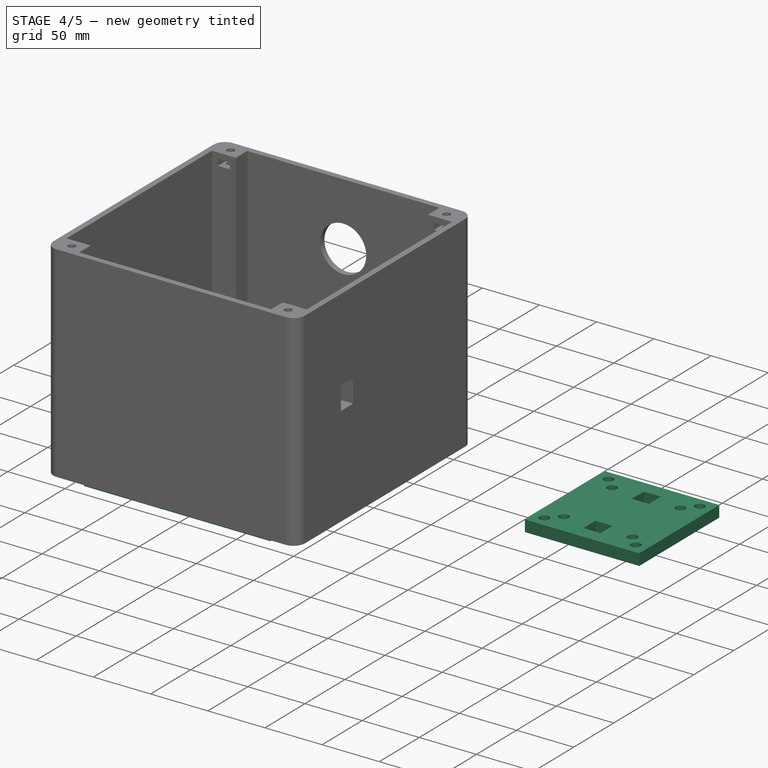
[diagram: stage 4 of 5 — iso view after this stage's code; geometry added in this stage tinted green]
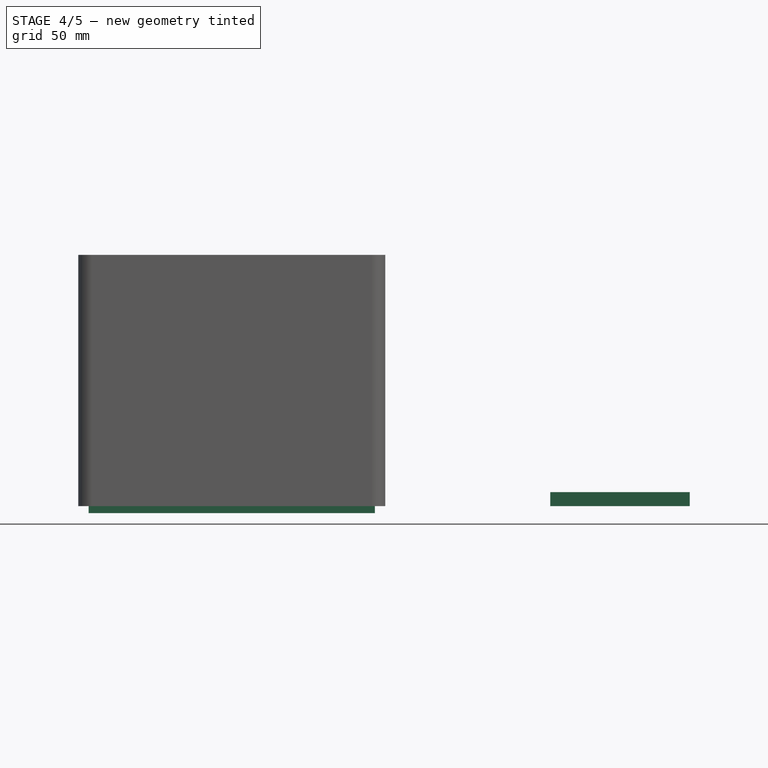
[diagram: stage 4 of 5 — front view after this stage's code; geometry added in this stage tinted green]
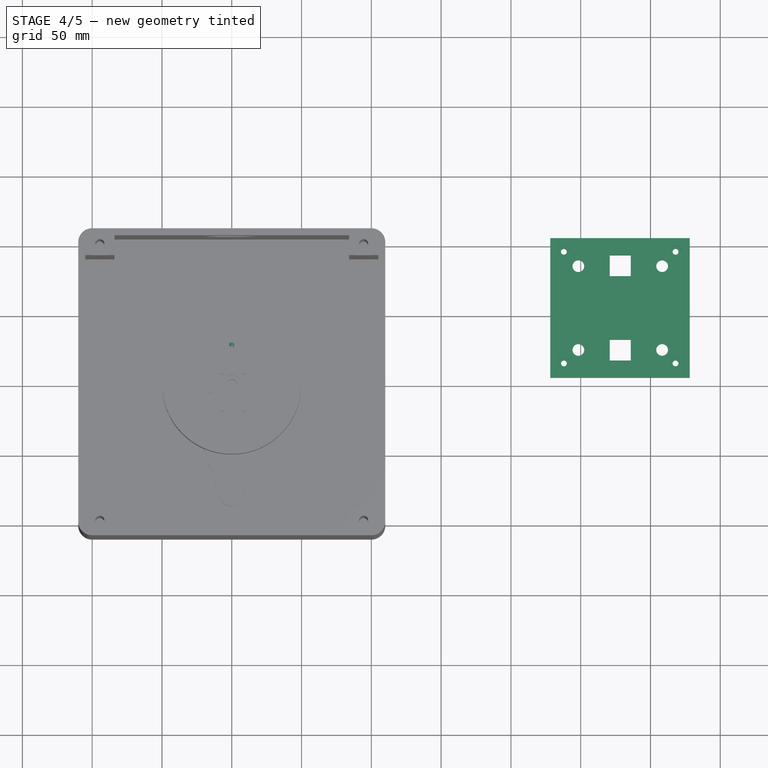
[diagram: stage 4 of 5 — top view after this stage's code; geometry added in this stage tinted green]
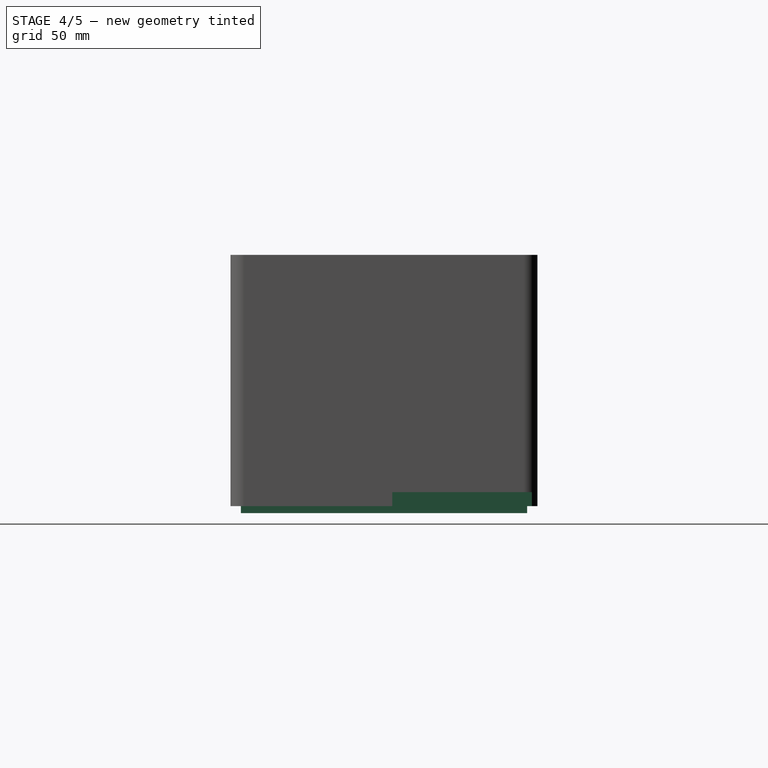
[diagram: stage 4 of 5 — right view after this stage's code; geometry added in this stage tinted green]
FEATURE [Part::Box] Box005  label="AddCube001"
  AttacherType = Attacher::AttachEngine3D
  Height = 9.5
  Length = 80
  Placement = pos=(-40,0,-1) rot=(0,0,1;0rad)
  Width = 100
FEATURE [Part::Cylinder] Cylinder014  label="CutCylinder001"
  Angle = 360
  AttacherType = Attacher::AttachEngine3D
  FirstAngle = 0
  Height = 27
  Placement = pos=(0,0,-1) rot=(0,0,1;0rad)
  Radius = 22.95
  SecondAngle = 0
  expr: Height = <<Sheet>>.plug_height + 1 - <<Sheet>>.plug_lip - <<Sheet>>.bearing_height
  expr: Radius = <<Sheet>>.bearing_inside / 2 + 0.2
FEATURE [Part::Cut] Cut011
  Base = -> Cylinder014
  Tool = -> Box005
FEATURE [Part::Cylinder] Cylinder016
  Angle = 360
  AttacherType = Attacher::AttachEngine3D
  FirstAngle = 0
  Height = 50
  Placement = pos=(0,50,20) rot=(1,0,0;1.5708rad)
  Radius = 1.65
  SecondAngle = 0
FEATURE [Part::Cylinder] Cylinder017
  Angle = 360
  AttacherType = Attacher::AttachEngine3D
  FirstAngle = 0
  Height = 2.5
  Placement = pos=(0,27.75,20) rot=(1,0,0;1.5708rad)
  Radius = 3.25
  SecondAngle = 0
  expr: .Placement.Base.y = <<Sheet>>.bearing_inside / 2 + <<Sheet>>.plug_overlap
FEATURE [Part::MultiFuse] Fusion007
  Shapes = -> [Cut011,Cylinder016,Cylinder017]
FEATURE [Sketcher::SketchObject] Sketch040
  FullyConstrained = true
  MapMode = 5
  Placement = pos=(0,0,5) rot=(0,0,1;0rad)
  Support = -> [Pad006]
  expr: Constraints[0] = Spreadsheet.lid_screw_size
  expr: Constraints[10] = Spreadsheet.box_sides / 2 + 10 - Spreadsheet.box_wall_thickness - Spreadsheet.lid_nut_depth / 2
  expr: Constraints[11] = Spreadsheet.box_sides / 2 + 10 - Spreadsheet.box_wall_thickness - Spreadsheet.lid_nut_depth / 2
  expr: Constraints[1] = Spreadsheet.lid_screw_size
  expr: Constraints[2] = Spreadsheet.lid_screw_size
  expr: Constraints[3] = Spreadsheet.lid_screw_size
  expr: Constraints[4] = Spreadsheet.box_sides / 2 + 10 - Spreadsheet.lid_nut_size - Spreadsheet.box_wall_thickness
  expr: Constraints[5] = Spreadsheet.box_sides / 2 + 10 - Spreadsheet.box_wall_thickness - Spreadsheet.lid_nut_depth / 2
  expr: Constraints[6] = Spreadsheet.box_sides / 2 + 10 - Spreadsheet.lid_nut_size - Spreadsheet.box_wall_thickness
  expr: Constraints[7] = Spreadsheet.box_sides / 2 + 10 - Spreadsheet.lid_nut_size - Spreadsheet.box_wall_thickness
  expr: Constraints[8] = Spreadsheet.box_sides / 2 + 10 - Spreadsheet.lid_nut_size - Spreadsheet.box_wall_thickness
  expr: Constraints[9] = Spreadsheet.box_sides / 2 + 10 - Spreadsheet.box_wall_thickness - Spreadsheet.lid_nut_depth / 2
  sketch-geometry (4):
    g0: Circle CenterX=-94.5 CenterY=99.1 CenterZ=0 NormalX=0 NormalY=0 NormalZ=1 AngleXU=0 Radius=3.2
    g1: Circle CenterX=94.5 CenterY=99.1 CenterZ=0 NormalX=0 NormalY=0 NormalZ=1 AngleXU=0 Radius=3.2
    g2: Circle CenterX=94.5 CenterY=-99.1 CenterZ=0 NormalX=0 NormalY=0 NormalZ=1 AngleXU=0 Radius=3.2
    g3: Circle CenterX=-94.5 CenterY=-99.1 CenterZ=0 NormalX=0 NormalY=0 NormalZ=1 AngleXU=0 Radius=3.2
  constraints (12):
    c: Diameter(g0) = 6.4
    c: Diameter(g1) = 6.4
    c: Diameter(g2) = 6.4
    c: Diameter(g3) = 6.4
    c: DistanceX(g3,g-1) = 94.5
    c: DistanceY(g3,g-1) = 99.1
    c: DistanceX(g0,g-1) = 94.5
    c: DistanceX(g-1,g1) = 94.5
    c: DistanceX(g-1,g2) = 94.5
    c: DistanceY(g-1,g0) = 99.1
    c: DistanceY(g-1,g1) = 99.1
    c: DistanceY(g2,g-1) = 99.1
FEATURE [PartDesign::Pocket] Pocket034
  BaseFeature = -> Pad006
  Direction = (0,0,-1)
  Length = 5
  Length2 = 5
  Profile = -> Sketch040
  ReferenceAxis = -> Sketch040 [N_Axis]
  Type = 0
  expr: Length = Spreadsheet.box_wall_thickness
FEATURE [Sketcher::SketchObject] Sketch041
  FullyConstrained = true
  MapMode = 5
  Placement = pos=(0,0,0) rot=(1,0,0;3.14159rad)
  Support = -> [Pocket034]
  expr: Constraints[8] = Spreadsheet.box_sides + 20 - Spreadsheet.box_wall_thickness * 2 - Spreadsheet.lid_nut_size * 4 - 5
  expr: Constraints[9] = Spreadsheet.box_sides + 20 - Spreadsheet.box_wall_thickness * 2 - 5
  sketch-geometry (4):
    g0: LineSegment StartX=-81.5 StartY=102.5 StartZ=0 EndX=81.5 EndY=102.5 EndZ=0
    g1: LineSegment StartX=81.5 StartY=102.5 StartZ=0 EndX=81.5 EndY=-102.5 EndZ=0
    g2: LineSegment StartX=81.5 StartY=-102.5 StartZ=0 EndX=-81.5 EndY=-102.5 EndZ=0
    g3: LineSegment StartX=-81.5 StartY=-102.5 StartZ=0 EndX=-81.5 EndY=102.5 EndZ=0
  constraints (11):
    c: Coincident(g0,g1)
    c: Coincident(g1,g2)
    c: Coincident(g2,g3)
    c: Coincident(g3,g0)
    c: Horizontal(g0)
    c: Horizontal(g2)
    c: Vertical(g1)
    c: Vertical(g3)
    c: DistanceX(g0,g0) = 163
    c: DistanceY(g3,g3) = 205
    c: Symmetric(g0,g1,g-1)
FEATURE [Sketcher::SketchObject] Sketch042
  FullyConstrained = true
  MapMode = 5
  Placement = pos=(0,0,0) rot=(1,0,0;3.14159rad)
  Support = -> [Pocket034]
  expr: Constraints[8] = Spreadsheet.box_sides + 20 - Spreadsheet.box_wall_thickness * 2 - Spreadsheet.lid_nut_depth * 2 - Spreadsheet.box_wall_thickness - 5
  expr: Constraints[9] = Spreadsheet.box_sides + 20 - Spreadsheet.box_wall_thickness * 2 - 5
  sketch-geometry (4):
    g0: LineSegment StartX=-102.5 StartY=88.2 StartZ=0 EndX=102.5 EndY=88.2 EndZ=0
    g1: LineSegment StartX=102.5 StartY=88.2 StartZ=0 EndX=102.5 EndY=-88.2 EndZ=0
    g2: LineSegment StartX=102.5 StartY=-88.2 StartZ=0 EndX=-102.5 EndY=-88.2 EndZ=0
    g3: LineSegment StartX=-102.5 StartY=-88.2 StartZ=0 EndX=-102.5 EndY=88.2 EndZ=0
  constraints (11):
    c: Coincident(g0,g1)
    c: Coincident(g1,g2)
    c: Coincident(g2,g3)
    c: Coincident(g3,g0)
    c: Horizontal(g0)
    c: Horizontal(g2)
    c: Vertical(g1)
    c: Vertical(g3)
    c: DistanceY(g3,g3) = 176.4
    c: DistanceX(g0,g0) = 205
    c: Symmetric(g0,g1,g-1)
FEATURE [PartDesign::Pad] Pad007
  BaseFeature = -> Pocket034
  Direction = (0,0,-1)
  Length = 5
  Length2 = 10
  Profile = -> Sketch041
  ReferenceAxis = -> Sketch041 [N_Axis]
  Type = 0
  expr: Length = Spreadsheet.box_wall_thickness
FEATURE [PartDesign::Pad] Pad008
  BaseFeature = -> Pad007
  Direction = (0,0,-1)
  Length = 5
  Length2 = 10
  Profile = -> Sketch042
  ReferenceAxis = -> Sketch042 [N_Axis]
  Type = 0
  expr: Length = Spreadsheet.box_wall_thickness
FEATURE [Sketcher::SketchObject] Sketch043
  FullyConstrained = true
  MapMode = 5
  Placement = pos=(0,0,-5) rot=(1,0,0;3.14159rad)
  Support = -> [Pad008]
  expr: Constraints[8] = Spreadsheet.box_sides - Spreadsheet.lid_nut_size * 2 - 30
  expr: Constraints[9] = Spreadsheet.box_sides - Spreadsheet.lid_nut_size * 2 + 20
  sketch-geometry (4):
    g0: LineSegment StartX=-74.5 StartY=99.5 StartZ=0 EndX=74.5 EndY=99.5 EndZ=0
    g1: LineSegment StartX=74.5 StartY=99.5 StartZ=0 EndX=74.5 EndY=-99.5 EndZ=0
    g2: LineSegment StartX=74.5 StartY=-99.5 StartZ=0 EndX=-74.5 EndY=-99.5 EndZ=0
    g3: LineSegment StartX=-74.5 StartY=-99.5 StartZ=0 EndX=-74.5 EndY=99.5 EndZ=0
  constraints (11):
    c: Coincident(g0,g1)
    c: Coincident(g1,g2)
    c: Coincident(g2,g3)
    c: Coincident(g3,g0)
    c: Horizontal(g0)
    c: Horizontal(g2)
    c: Vertical(g1)
    c: Vertical(g3)
    c: DistanceX(g0,g0) = 149
    c: DistanceY(g3,g3) = 199
    c: Symmetric(g0,g1,g-1)
FEATURE [PartDesign::Pocket] Pocket035
  BaseFeature = -> Pad008
  Direction = (0,0,1)
  Length = 5
  Length2 = 5
  Profile = -> Sketch043
  ReferenceAxis = -> Sketch043 [N_Axis]
  Type = 0
FEATURE [Sketcher::SketchObject] Sketch044
  FullyConstrained = false
  MapMode = 5
  Support = -> [XY_Plane005]
  sketch-geometry (4):
    g0: LineSegment StartX=228.149 StartY=105.911 StartZ=0 EndX=328.149 EndY=105.911 EndZ=0
    g1: LineSegment StartX=328.149 StartY=105.911 StartZ=0 EndX=328.149 EndY=5.91101 EndZ=0
    g2: LineSegment StartX=328.149 StartY=5.91101 StartZ=0 EndX=228.149 EndY=5.91101 EndZ=0
    g3: LineSegment StartX=228.149 StartY=5.91101 StartZ=0 EndX=228.149 EndY=105.911 EndZ=0
  constraints (10):
    c: Coincident(g0,g1)
    c: Coincident(g1,g2)
    c: Coincident(g2,g3)
    c: Coincident(g3,g0)
    c: Horizontal(g0)
    c: Horizontal(g2)
    c: Vertical(g1)
    c: Vertical(g3)
    c: DistanceX(g0,g0) = 100
    c: DistanceY(g1,g1) = 100
FEATURE [PartDesign::Pad] Pad009
  Direction = (0,0,1)
  Length = 10
  Length2 = 10
  Profile = -> Sketch044
  ReferenceAxis = -> Sketch044 [N_Axis]
  Type = 0
FEATURE [Sketcher::SketchObject] Sketch045
  FullyConstrained = false
  Placement = pos=(-36,-54,0) rot=(0,0,1;0rad)
  expr: Constraints[0] = Spreadsheet.hole_size
  expr: Constraints[18] = 15
  expr: Constraints[19] = 15
  expr: Constraints[1] = Spreadsheet.hole_size
  expr: Constraints[20] = Spreadsheet.hole_distance / 2 - 7.5
  expr: Constraints[2] = Spreadsheet.hole_size
  expr: Constraints[31] = Spreadsheet.hole_distance / 2 - 7.5
  expr: Constraints[3] = Spreadsheet.hole_size
  expr: Constraints[4] = Spreadsheet.hole_distance
  expr: Constraints[5] = Spreadsheet.hole_distance
  expr: Constraints[6] = Spreadsheet.hole_distance
  sketch-geometry (12):
    g0: Circle CenterX=284.333 CenterY=139.793 CenterZ=0 NormalX=0 NormalY=0 NormalZ=1 AngleXU=0 Radius=4.2
    g1: Circle CenterX=344.333 CenterY=139.793 CenterZ=0 NormalX=0 NormalY=0 NormalZ=1 AngleXU=0 Radius=4.2
    g2: Circle CenterX=284.333 CenterY=79.7934 CenterZ=0 NormalX=0 NormalY=0 NormalZ=1 AngleXU=0 Radius=4.2
    g3: Circle CenterX=344.333 CenterY=79.7934 CenterZ=0 NormalX=0 NormalY=0 NormalZ=1 AngleXU=0 Radius=4.2
    g4: LineSegment StartX=306.833 StartY=147.609 StartZ=0 EndX=321.833 EndY=147.609 EndZ=0
    g5: LineSegment StartX=321.833 StartY=147.609 StartZ=0 EndX=321.833 EndY=132.609 EndZ=0
    g6: LineSegment StartX=321.833 StartY=132.609 StartZ=0 EndX=306.833 EndY=132.609 EndZ=0
    g7: LineSegment StartX=306.833 StartY=132.609 StartZ=0 EndX=306.833 EndY=147.609 EndZ=0
    g8: LineSegment StartX=306.833 StartY=87.1752 StartZ=0 EndX=321.833 EndY=87.1752 EndZ=0
    g9: LineSegment StartX=321.833 StartY=87.1752 StartZ=0 EndX=321.833 EndY=72.1752 EndZ=0
    g10: LineSegment StartX=321.833 StartY=72.1752 StartZ=0 EndX=306.833 EndY=72.1752 EndZ=0
    g11: LineSegment StartX=306.833 StartY=72.1752 StartZ=0 EndX=306.833 EndY=87.1752 EndZ=0
  constraints (32):
    c: Diameter(g0) = 8.4
    c: Diameter(g1) = 8.4
    c: Diameter(g3) = 8.4
    c: Diameter(g2) = 8.4
    c: DistanceY(g2,g0) = 60
    c: DistanceX(g2,g3) = 60
    c: DistanceX(g0,g1) = 60
    c: DistanceX(g2,g0) = 0
    c: DistanceY(g2,g3) = 0
    c: DistanceY(g1,g0) = 0
    c: Coincident(g4,g5)
    c: Coincident(g5,g6)
    c: Coincident(g6,g7)
    c: Coincident(g7,g4)
    c: Horizontal(g4)
    c: Horizontal(g6)
    c: Vertical(g5)
    c: Vertical(g7)
    c: DistanceY(g7,g7) = 15
    c: DistanceX(g4,g4) = 15
    c: DistanceX(g0,g4) = 22.5
    c: Coincident(g8,g9)
    c: Coincident(g9,g10)
    c: Coincident(g10,g11)
    c: Coincident(g11,g8)
    c: Horizontal(g8)
    c: Horizontal(g10)
    c: Vertical(g9)
    c: Vertical(g11)
    c: DistanceX(g8,g8) = 15
    c: DistanceY(g11,g11) = 15
    c: DistanceX(g2,g8) = 22.5
FEATURE [Sketcher::SketchObject] Sketch046
  FullyConstrained = false
  Placement = pos=(-36,-54,0) rot=(0,0,1;0rad)
  expr: Constraints[0] = Spreadsheet.hole_size * 2
  expr: Constraints[1] = Spreadsheet.hole_size * 2
  expr: Constraints[2] = Spreadsheet.hole_size * 2
  expr: Constraints[3] = Spreadsheet.hole_size * 2
  expr: Constraints[4] = Spreadsheet.hole_distance
  expr: Constraints[5] = Spreadsheet.hole_distance
  expr: Constraints[6] = Spreadsheet.hole_distance
  sketch-geometry (4):
    g0: Circle CenterX=284.233 CenterY=139.769 CenterZ=0 NormalX=0 NormalY=0 NormalZ=1 AngleXU=0 Radius=8.4
    g1: Circle CenterX=344.233 CenterY=139.769 CenterZ=0 NormalX=0 NormalY=0 NormalZ=1 AngleXU=0 Radius=8.4
    g2: Circle CenterX=284.233 CenterY=79.7687 CenterZ=0 NormalX=0 NormalY=0 NormalZ=1 AngleXU=0 Radius=8.4
    g3: Circle CenterX=344.233 CenterY=79.7687 CenterZ=0 NormalX=0 NormalY=0 NormalZ=1 AngleXU=0 Radius=8.4
  constraints (10):
    c: Diameter(g0) = 16.8
    c: Diameter(g1) = 16.8
    c: Diameter(g3) = 16.8
    c: Diameter(g2) = 16.8
    c: DistanceY(g2,g0) = 60
    c: DistanceX(g2,g3) = 60
    c: DistanceX(g0,g1) = 60
    c: DistanceX(g2,g0) = 0
    c: DistanceY(g2,g3) = 0
    c: DistanceY(g1,g0) = 0
FEATURE [Sketcher::SketchObject] Sketch047
  FullyConstrained = false
  MapMode = 5
  Placement = pos=(0,0,10) rot=(0,0,1;0rad)
  sketch-geometry (4):
    g0: Circle CenterX=237.949 CenterY=96.2098 CenterZ=0 NormalX=0 NormalY=0 NormalZ=1 AngleXU=0 Radius=2.1
    g1: Circle CenterX=317.949 CenterY=96.2098 CenterZ=0 NormalX=0 NormalY=0 NormalZ=1 AngleXU=0 Radius=2.1
    g2: Circle CenterX=237.949 CenterY=16.2098 CenterZ=0 NormalX=0 NormalY=0 NormalZ=1 AngleXU=0 Radius=2.1
    g3: Circle CenterX=317.949 CenterY=16.2098 CenterZ=0 NormalX=0 NormalY=0 NormalZ=1 AngleXU=0 Radius=2.1
  constraints (10):
    c: Diameter(g0) = 4.2
    c: Diameter(g1) = 4.2
    c: Diameter(g2) = 4.2
    c: Diameter(g3) = 4.2
    c: DistanceY(g2,g0) = 80
    c: DistanceX(g2,g0) = 0
    c: DistanceX(g0,g1) = 80
    c: DistanceX(g2,g3) = 80
    c: DistanceY(g0,g1) = 0
    c: DistanceY(g2,g3) = 0
FEATURE [PartDesign::Pocket] Pocket036
  BaseFeature = -> Pad009
  Direction = (0,0,-1)
  Length = 10
  Length2 = 5
  Profile = -> Sketch047
  ReferenceAxis = -> Sketch047 [N_Axis]
  Type = 0
FEATURE [Sketcher::SketchObject] Sketch048
  FullyConstrained = false
  MapMode = 5
  Placement = pos=(0,0,10) rot=(0,0,1;0rad)
  Support = -> [Pocket036]
  sketch-geometry (4):
    g0: Circle CenterX=237.975 CenterY=96.1707 CenterZ=0 NormalX=0 NormalY=0 NormalZ=1 AngleXU=0 Radius=4.2
    g1: Circle CenterX=317.975 CenterY=96.1707 CenterZ=0 NormalX=0 NormalY=0 NormalZ=1 AngleXU=0 Radius=4.2
    g2: Circle CenterX=237.975 CenterY=16.1707 CenterZ=0 NormalX=0 NormalY=0 NormalZ=1 AngleXU=0 Radius=4.2
    g3: Circle CenterX=317.975 CenterY=16.1707 CenterZ=0 NormalX=0 NormalY=0 NormalZ=1 AngleXU=0 Radius=4.2
  constraints (10):
    c: Diameter(g0) = 8.4
    c: Diameter(g1) = 8.4
    c: Diameter(g3) = 8.4
    c: Diameter(g2) = 8.4
    c: DistanceY(g2,g0) = 80
    c: DistanceY(g3,g1) = 80
    c: DistanceY(g3,g2) = 0
    c: DistanceX(g2,g3) = 80
    c: DistanceX(g0,g1) = 80
    c: DistanceX(g0,g2) = 0
FEATURE [PartDesign::Pocket] Pocket037
  BaseFeature = -> Pocket036
  Direction = (0,0,-1)
  Length = 5
  Length2 = 5
  Profile = -> Sketch048
  ReferenceAxis = -> Sketch048 [N_Axis]
  Type = 0
FEATURE [PartDesign::Pocket] Pocket038
  BaseFeature = -> Pocket037
  Direction = (0,0,-1)
  Length = 10
  Length2 = 5
  Profile = -> Sketch045
  ReferenceAxis = -> Sketch045 [N_Axis]
  Reversed = true
  Type = 0
FEATURE [PartDesign::Pocket] Pocket039
  BaseFeature = -> Pocket038
  Direction = (0,0,-1)
  Length = 5
  Length2 = 5
  Profile = -> Sketch046
  ReferenceAxis = -> Sketch046 [N_Axis]
  Reversed = true
  Type = 0
FEATURE [PartDesign::Body] Body005
  Group = -> [Sketch044,Pad009,Sketch045,Sketch046,Sketch047,Pocket036,Sketch048,Pocket037,Pocket038,Pocket039]
  Origin = -> Origin005
  Placement = pos=(-277.9,-14.5,317) rot=(0,0,1;0rad)
  Tip = -> Pocket039
FEATURE [Sketcher::SketchObject] Sketch049
  FullyConstrained = false
  MapMode = 5
  Support = -> [XY_Plane004]
  sketch-geometry (4):
    g0: Circle CenterX=-40 CenterY=81.9651 CenterZ=0 NormalX=0 NormalY=0 NormalZ=1 AngleXU=0 Radius=2.2
    g1: Circle CenterX=40 CenterY=81.9651 CenterZ=0 NormalX=0 NormalY=0 NormalZ=1 AngleXU=0 Radius=2.2
    g2: Circle CenterX=40 CenterY=1.9651 CenterZ=0 NormalX=0 NormalY=0 NormalZ=1 AngleXU=0 Radius=2.2
    g3: Circle CenterX=-40 CenterY=1.9651 CenterZ=0 NormalX=0 NormalY=0 NormalZ=1 AngleXU=0 Radius=2.2
  constraints (11):
    c: DistanceX(g3,g2) = 80
    c: DistanceX(g0,g1) = 80
    c: DistanceY(g3,g0) = 80
    c: DistanceY(g2,g1) = 80
    c: DistanceY(g3,g2) = 0
    c: DistanceX(g3,g0) = 0
    c: Diameter(g0) = 4.4
    c: Diameter(g1) = 4.4
    c: Diameter(g2) = 4.4
    c: Diameter(g3) = 4.4
    c: DistanceX(g0,g-1) = 40
FEATURE [PartDesign::Pocket] Pocket040
  BaseFeature = -> Pocket035
  Direction = (0,0,-1)
  Length = 5
  Length2 = 5
  Profile = -> Sketch049
  ReferenceAxis = -> Sketch049 [N_Axis]
  Reversed = true
  Type = 0
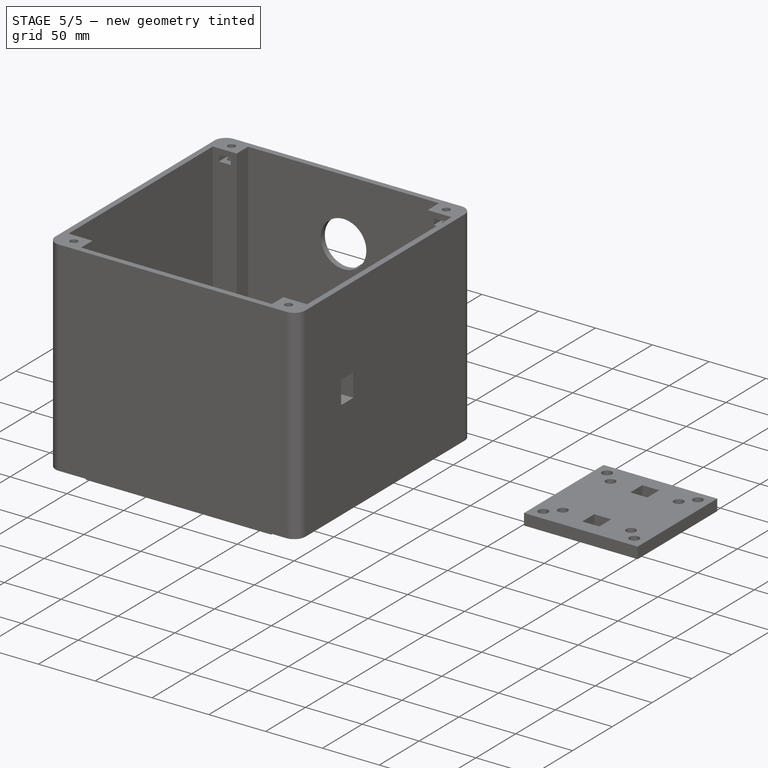
[diagram: stage 5 of 5 — iso view after this stage's code; geometry added in this stage tinted green]
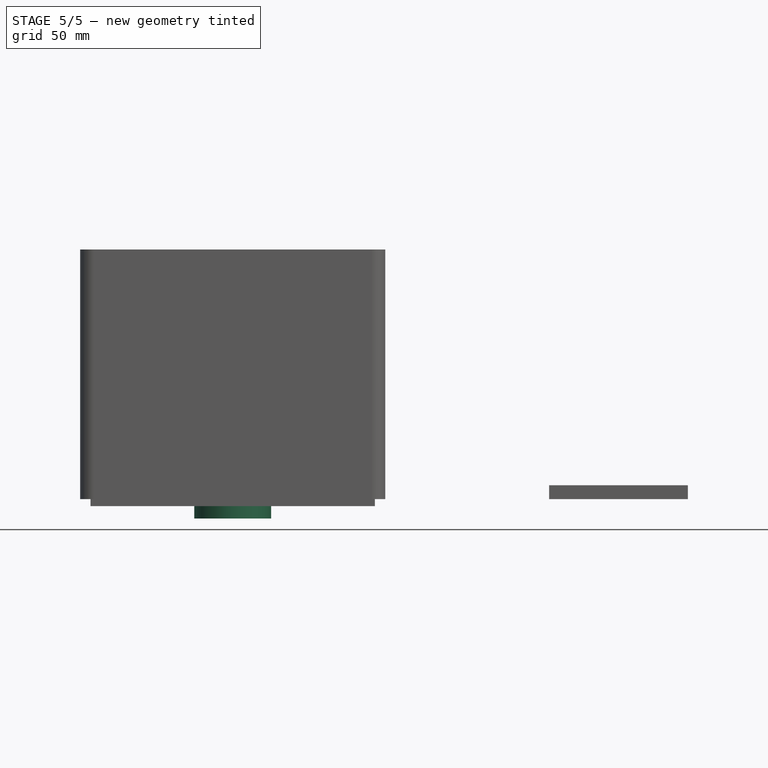
[diagram: stage 5 of 5 — front view after this stage's code; geometry added in this stage tinted green]
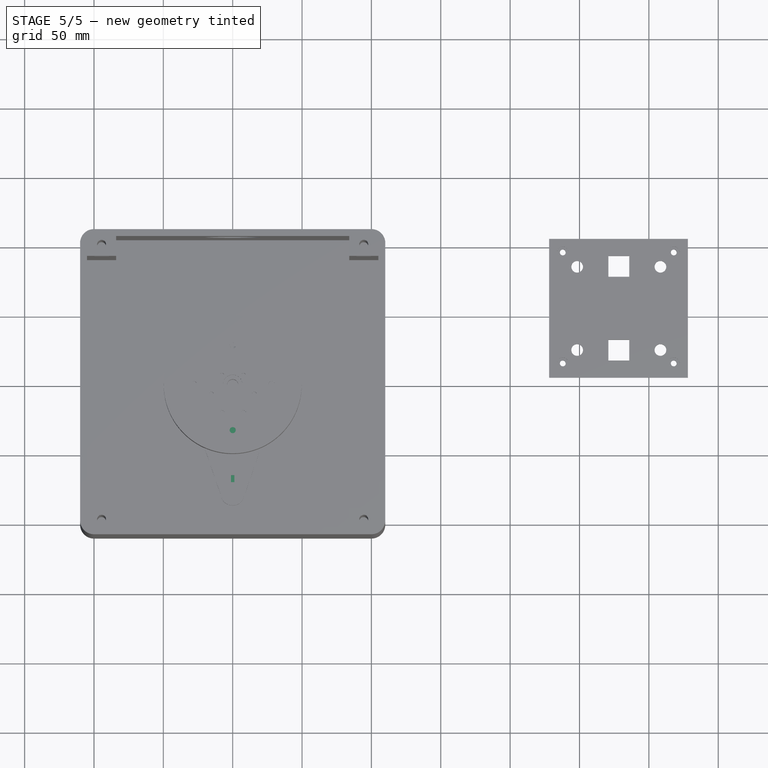
[diagram: stage 5 of 5 — top view after this stage's code; geometry added in this stage tinted green]
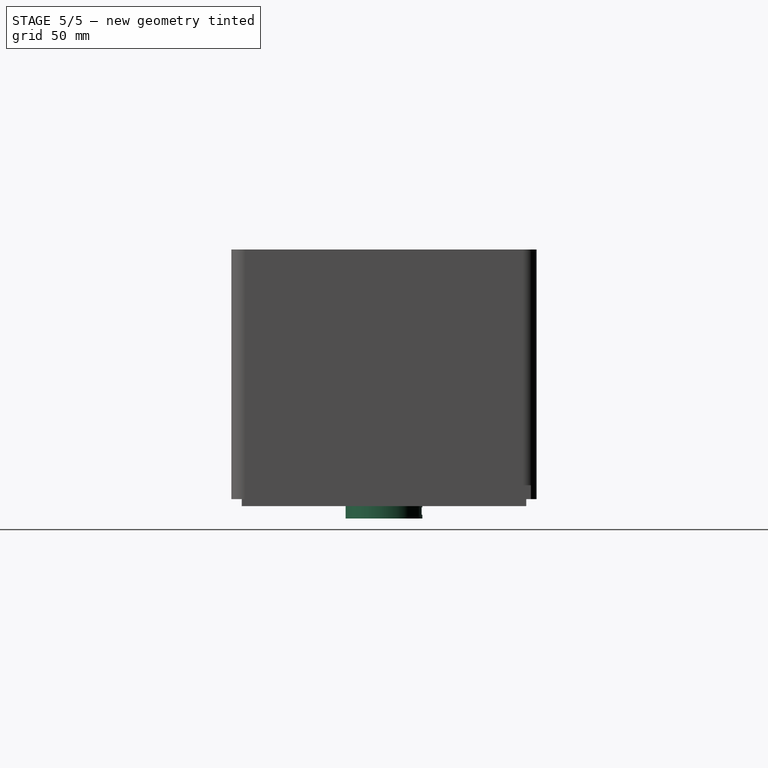
[diagram: stage 5 of 5 — right view after this stage's code; geometry added in this stage tinted green]
FEATURE [Part::Cylinder] Cylinder015
  Angle = 360
  AttacherType = Attacher::AttachEngine3D
  FirstAngle = 0
  Height = 40
  Placement = pos=(0,0,-14) rot=(0,0,1;0rad)
  Radius = 27.75
  SecondAngle = 0
  expr: .Placement.Base.z = <<Sheet>>.plug_height - <<Sheet>>.plug_lip - <<Sheet>>.bearing_height - <<Sheet>>.lower_part_height
  expr: Height = <<Sheet>>.lower_part_height
  expr: Radius = <<Sheet>>.bearing_inside / 2 + <<Sheet>>.plug_overlap
FEATURE [Part::Cut] Cut010  label="lower_part001"
  Base = -> Cylinder015
  Tool = -> Fusion007
FEATURE [PartDesign::FeatureBase] BaseFeature003
  BaseFeature = -> Cut010
FEATURE [Sketcher::SketchObject] Sketch013
  FullyConstrained = true
  MapMode = 5
  Placement = pos=(0,0,-14) rot=(1,0,0;3.14159rad)
  Support = -> [BaseFeature003]
  expr: Constraints[1] = (<<Sheet>>.bearing_inside / 2 + <<Sheet>>.plug_overlap) * 2
  sketch-geometry (1):
    g0: Circle CenterX=0 CenterY=0 CenterZ=0 NormalX=0 NormalY=0 NormalZ=1 AngleXU=0 Radius=27.75
  constraints (2):
    c: Coincident(g0,g-1)
    c: Diameter(g0) = 55.5
FEATURE [PartDesign::Pad] Pad001
  BaseFeature = -> BaseFeature003
  Direction = (0,0,-1)
  Length = 10
  Length2 = 10
  Profile = -> Sketch013
  ReferenceAxis = -> Sketch013 [N_Axis]
  Type = 0
  expr: Length = 10
FEATURE [Sketcher::SketchObject] Sketch014
  FullyConstrained = true
  Placement = pos=(0,28,0) rot=(0,0.707107,0.707107;3.14159rad)
  expr: Constraints[10] = <<Sheet>>.tripod_nut_width / 2
  expr: Constraints[11] = <<Sheet>>.tripod_screw_length / 2 - 2.5
  expr: Constraints[8] = <<Sheet>>.tripod_nut_height
  expr: Constraints[9] = <<Sheet>>.tripod_nut_width
  sketch-geometry (4):
    g0: LineSegment StartX=-12 StartY=-5 StartZ=0 EndX=12 EndY=-5 EndZ=0
    g1: LineSegment StartX=12 StartY=-5 StartZ=0 EndX=12 EndY=-19.2 EndZ=0
    g2: LineSegment StartX=12 StartY=-19.2 StartZ=0 EndX=-12 EndY=-19.2 EndZ=0
    g3: LineSegment StartX=-12 StartY=-19.2 StartZ=0 EndX=-12 EndY=-5 EndZ=0
  constraints (12):
    c: Coincident(g0,g1)
    c: Coincident(g1,g2)
    c: Coincident(g2,g3)
    c: Coincident(g3,g0)
    c: Horizontal(g0)
    c: Horizontal(g2)
    c: Vertical(g1)
    c: Vertical(g3)
    c: DistanceY(g3,g3) = 14.2
    c: DistanceX(g0,g0) = 24
    c: DistanceX(g0,g-1) = 12
    c: DistanceY(g0,g-1) = 5
FEATURE [PartDesign::Pocket] Pocket013
  BaseFeature = -> Pad001
  Direction = (0,-1,2e-16)
  Length = 28
  Length2 = 5
  Profile = -> Sketch014
  ReferenceAxis = -> Sketch014 [N_Axis]
  Type = 0
  expr: Length = 28
FEATURE [Sketcher::SketchObject] Sketch015
  FullyConstrained = true
  MapMode = 5
  Placement = pos=(0,0,-24) rot=(1,0,0;3.14159rad)
  Support = -> [Pocket013]
  expr: Constraints[1] = <<Sheet>>.tripod_screw_diameter
  sketch-geometry (1):
    g0: Circle CenterX=0 CenterY=0 CenterZ=0 NormalX=0 NormalY=0 NormalZ=1 AngleXU=0 Radius=8.1
  constraints (2):
    c: Coincident(g0,g-1)
    c: Diameter(g0) = 16.2
FEATURE [PartDesign::Pocket] Pocket014
  BaseFeature = -> Pocket013
  Direction = (0,0,1)
  Length = 15
  Length2 = 5
  Profile = -> Sketch015
  ReferenceAxis = -> Sketch015 [N_Axis]
  Type = 0
  expr: Length = <<Sheet>>.tripod_screw_length
FEATURE [Sketcher::SketchObject] Sketch016
  AttachmentOffset = pos=(0,0,-4.7) rot=(0,0,1;0rad)
  FullyConstrained = false
  MapMode = 5
  Placement = pos=(0,0,-19.3) rot=(1,0,0;3.14159rad)
  Support = -> [Pocket014]
  sketch-geometry (7):
    g0: LineSegment StartX=4e-16 StartY=-14.0361 StartZ=0 EndX=12.1556 EndY=-7.01803 EndZ=0
    g1: LineSegment StartX=12.1556 StartY=-7.01803 StartZ=0 EndX=12.1556 EndY=7.01803 EndZ=0
    g2: LineSegment StartX=12.1556 StartY=7.01803 StartZ=0 EndX=2.2e-15 EndY=14.0361 EndZ=0
    g3: LineSegment StartX=2.2e-15 StartY=14.0361 StartZ=0 EndX=-12.1556 EndY=7.01803 EndZ=0
    g4: LineSegment StartX=-12.1556 StartY=7.01803 StartZ=0 EndX=-12.1556 EndY=-7.01803 EndZ=0
    g5: LineSegment StartX=-12.1556 StartY=-7.01803 StartZ=0 EndX=4e-16 EndY=-14.0361 EndZ=0
    g6: Circle CenterX=0 CenterY=0 CenterZ=0 NormalX=0 NormalY=0 NormalZ=1 AngleXU=0 Radius=14.0361
  constraints (15):
    c: Coincident(g0,g1)
    c: Coincident(g1,g2)
    c: Coincident(g2,g3)
    c: Coincident(g3,g4)
    c: Coincident(g4,g5)
    c: Coincident(g5,g0)
    c: Equal(g0, g1-g5) x5
    c: PointOnObject(g0,g6)
    c: PointOnObject(g1,g6)
    c: PointOnObject(g2,g6)
    c: PointOnObject(g3,g6)
    c: PointOnObject(g4,g6)
    c: PointOnObject(g5,g6)
    c: Coincident(g6,g-1)
    c: PointOnObject(g5,g-2)
FEATURE [PartDesign::Pocket] Pocket015
  BaseFeature = -> Pocket014
  Direction = (0,0,1)
  Length = 14.4
  Length2 = 5
  Profile = -> Sketch016
  ReferenceAxis = -> Sketch016 [N_Axis]
  Type = 0
  expr: Length = <<Sheet>>.tripod_nut_height + 0.2
FEATURE [Sketcher::SketchObject] Sketch019
  AttachmentOffset = pos=(0,0,-1) rot=(0,0,1;0rad)
  FullyConstrained = false
  MapMode = 5
  Placement = pos=(0,0,25) rot=(0,0,1;0rad)
  Support = -> [Pocket015]
  sketch-geometry (4):
    g0: ArcOfCircle CenterX=0 CenterY=0 CenterZ=0 NormalX=0 NormalY=0 NormalZ=1 AngleXU=0 Radius=27.6386 StartAngle=4.11469 EndAngle=5.31214
    g1: LineSegment StartX=15.6003 StartY=-22.8149 StartZ=0 EndX=5.91858 EndY=-80.9851 EndZ=0
    g2: LineSegment StartX=-15.5533 StartY=-22.847 StartZ=0 EndX=-5.91927 EndY=-80.981 EndZ=0
    g3: ArcOfCircle CenterX=0 CenterY=-80 CenterZ=0 NormalX=0 NormalY=0 NormalZ=1 AngleXU=0 Radius=6 StartAngle=3.30582 EndAngle=6.11826
  constraints (8):
    c: Coincident(g0,g-1)
    c: Coincident(g1,g0)
    c: Coincident(g2,g0)
    c: Tangent(g1,g3) = 1.5708
    c: Tangent(g2,g3) = -1.5708
    c: Radius(g3) = 6
    c: DistanceX(g3,g0) = 0
    c: DistanceY(g3,g0) = 80
FEATURE [PartDesign::Pad] Pad003
  BaseFeature = -> Pocket015
  Direction = (0,0,1)
  Length = 5
  Length2 = 10
  Profile = -> Sketch019
  ReferenceAxis = -> Sketch019 [N_Axis]
  Reversed = true
  Type = 0
FEATURE [Sketcher::SketchObject] Sketch031
  FullyConstrained = false
  MapMode = 5
  Placement = pos=(0,0,25) rot=(0,0,1;0rad)
  Support = -> [Pad003]
  sketch-geometry (4):
    g0: ArcOfCircle CenterX=0 CenterY=-80 CenterZ=0 NormalX=0 NormalY=0 NormalZ=1 AngleXU=0 Radius=6 StartAngle=3.32545 EndAngle=6.12317
    g1: ArcOfCircle CenterX=0 CenterY=0 CenterZ=0 NormalX=0 NormalY=0 NormalZ=1 AngleXU=0 Radius=49.8835 StartAngle=4.48521 EndAngle=4.94033
    g2: LineSegment StartX=11.2725 StartY=-48.5931 StartZ=0 EndX=5.92335 EndY=-80.956 EndZ=0
    g3: LineSegment StartX=-11.235 StartY=-48.6018 StartZ=0 EndX=-5.89887 EndY=-81.097 EndZ=0
  constraints (8):
    c: PointOnObject(g0,g-2)
    c: DistanceY(g0,g-1) = 80
    c: Radius(g0) = 6
    c: Coincident(g1,g-1)
    c: Coincident(g2,g1)
    c: Coincident(g2,g0)
    c: Coincident(g3,g1)
    c: Coincident(g3,g0)
FEATURE [PartDesign::Pad] Pad004
  BaseFeature = -> Pad003
  Direction = (0,0,1)
  Length = 12
  Length2 = 10
  Profile = -> Sketch031
  ReferenceAxis = -> Sketch031 [N_Axis]
  Type = 0
  expr: Length = 12
FEATURE [Sketcher::SketchObject] Sketch032
  FullyConstrained = false
  MapMode = 5
  Placement = pos=(0,0,20) rot=(1,0,0;3.14159rad)
  Support = -> [Pad004]
  sketch-geometry (4):
    g0: ArcOfCircle CenterX=0 CenterY=0 CenterZ=0 NormalX=0 NormalY=0 NormalZ=1 AngleXU=0 Radius=56.9272 StartAngle=1.25968 EndAngle=1.88829
    g1: LineSegment StartX=-17.7719 StartY=54.082 StartZ=0 EndX=-17.7719 EndY=91.2766 EndZ=0
    g2: LineSegment StartX=17.4267 StartY=54.1943 StartZ=0 EndX=17.4267 EndY=91.2766 EndZ=0
    g3: LineSegment StartX=17.4267 StartY=91.2766 StartZ=0 EndX=-17.7719 EndY=91.2766 EndZ=0
  constraints (8):
    c: Coincident(g0,g-1)
    c: Coincident(g1,g0)
    c: Vertical(g1)
    c: Coincident(g2,g0)
    c: Vertical(g2)
    c: Coincident(g3,g2)
    c: Coincident(g3,g1)
    c: Horizontal(g3)
FEATURE [PartDesign::Pocket] Pocket017
  BaseFeature = -> Pad004
  Direction = (0,0,1)
  Length = 10
  Length2 = 5
  Profile = -> Sketch032
  ReferenceAxis = -> Sketch032 [N_Axis]
  Type = 0
  expr: Length = 10
FEATURE [Sketcher::SketchObject] Sketch033
  FullyConstrained = true
  MapMode = 5
  Placement = pos=(0,0,37) rot=(0,0,1;0rad)
  Support = -> [Pocket017]
  expr: Constraints[1] = <<Sheet>>.hall_effect_distance + <<Sheet>>.hall_effect_x / 2
  expr: Constraints[2] = <<Sheet>>.he_magnet_diameter
  sketch-geometry (1):
    g0: Circle CenterX=0 CenterY=-67.25 CenterZ=0 NormalX=0 NormalY=0 NormalZ=1 AngleXU=0 Radius=2.6
  constraints (3):
    c: PointOnObject(g0,g-2)
    c: DistanceY(g0,g-1) = 67.25
    c: Diameter(g0) = 5.2
FEATURE [PartDesign::Pocket] Pocket029
  BaseFeature = -> Pocket017
  Direction = (0,0,-1)
  Length = 4.2
  Length2 = 5
  Profile = -> Sketch033
  ReferenceAxis = -> Sketch033 [N_Axis]
  Type = 0
  expr: Length = <<Sheet>>.he_magnet_height
FEATURE [Sketcher::SketchObject] Sketch034
  FullyConstrained = false
  MapMode = 5
  Placement = pos=(0,0,-24) rot=(1,0,0;3.14159rad)
  Support = -> [Pocket029]
  sketch-geometry (4):
    g0: LineSegment StartX=-57.1664 StartY=48.8403 StartZ=0 EndX=51.1268 EndY=48.8403 EndZ=0
    g1: LineSegment StartX=51.1268 StartY=48.8403 StartZ=0 EndX=51.1268 EndY=-38.2922 EndZ=0
    g2: LineSegment StartX=51.1268 StartY=-38.2922 StartZ=0 EndX=-57.1664 EndY=-38.2922 EndZ=0
    g3: LineSegment StartX=-57.1664 StartY=-38.2922 StartZ=0 EndX=-57.1664 EndY=48.8403 EndZ=0
  constraints (8):
    c: Coincident(g0,g1)
    c: Coincident(g1,g2)
    c: Coincident(g2,g3)
    c: Coincident(g3,g0)
    c: Horizontal(g0)
    c: Horizontal(g2)
    c: Vertical(g1)
    c: Vertical(g3)
FEATURE [PartDesign::Pocket] Pocket030
  BaseFeature = -> Pocket029
  Direction = (0,0,1)
  Length = 20
  Length2 = 5
  Profile = -> Sketch034
  ReferenceAxis = -> Sketch034 [N_Axis]
  Type = 0
FEATURE [Sketcher::SketchObject] Sketch035
  FullyConstrained = false
  MapMode = 5
  Placement = pos=(0,0,-4) rot=(1,0,0;3.14159rad)
  Support = -> [Pocket030]
  sketch-geometry (1):
    g0: Circle CenterX=0 CenterY=0 CenterZ=0 NormalX=0 NormalY=0 NormalZ=1 AngleXU=0 Radius=27.6997
  constraints (1):
    c: Coincident(g0,g-1)
FEATURE [PartDesign::Pad] Pad005
  BaseFeature = -> Pocket030
  Direction = (0,0,-1)
  Length = 10
  Length2 = 10
  Profile = -> Sketch035
  ReferenceAxis = -> Sketch035 [N_Axis]
  Type = 0
  expr: Length = 10 mm
FEATURE [Sketcher::SketchObject] Sketch036
  AttachmentOffset = pos=(0,0,-33) rot=(0,0,1;0rad)
  FullyConstrained = false
  MapMode = 5
  Placement = pos=(0,33,7.3e-15) rot=(1,0,0;1.5708rad)
  Support = -> [XZ_Plane003]
  expr: Constraints[8] = 11.3
  sketch-geometry (4):
    g0: LineSegment StartX=-5.65 StartY=-5.97707 StartZ=0 EndX=5.65 EndY=-5.97707 EndZ=0
    g1: LineSegment StartX=5.65 StartY=-5.97707 StartZ=0 EndX=5.65 EndY=-11.2771 EndZ=0
    g2: LineSegment StartX=5.65 StartY=-11.2771 StartZ=0 EndX=-5.65 EndY=-11.2771 EndZ=0
    g3: LineSegment StartX=-5.65 StartY=-11.2771 StartZ=0 EndX=-5.65 EndY=-5.97707 EndZ=0
  constraints (11):
    c: Coincident(g0,g1)
    c: Coincident(g1,g2)
    c: Coincident(g2,g3)
    c: Coincident(g3,g0)
    c: Horizontal(g0)
    c: Horizontal(g2)
    c: Vertical(g1)
    c: Vertical(g3)
    c: DistanceX(g0,g0) = 11.3
    c: DistanceY(g3,g3) = 5.3
    c: DistanceX(g0,g-1) = 5.65
FEATURE [PartDesign::Pocket] Pocket031
  BaseFeature = -> Pad005
  Direction = (0,1,2e-16)
  Length = 33
  Length2 = 5
  Profile = -> Sketch036
  ReferenceAxis = -> Sketch036 [N_Axis]
  Reversed = true
  Type = 0
FEATURE [Sketcher::SketchObject] Sketch037
  AttachmentOffset = pos=(0,0,-6) rot=(0,0,1;0rad)
  FullyConstrained = true
  MapMode = 5
  Placement = pos=(0,0,-6) rot=(0,0,1;0rad)
  Support = -> [XY_Plane003]
  sketch-geometry (7):
    g0: LineSegment StartX=5.65 StartY=-3.26203 StartZ=0 EndX=5.65 EndY=3.26203 EndZ=0
    g1: LineSegment StartX=5.65 StartY=3.26203 StartZ=0 EndX=-3e-16 EndY=6.52406 EndZ=0
    g2: LineSegment StartX=-3e-16 StartY=6.52406 StartZ=0 EndX=-5.65 EndY=3.26203 EndZ=0
    g3: LineSegment StartX=-5.65 StartY=3.26203 StartZ=0 EndX=-5.65 EndY=-3.26203 EndZ=0
    g4: LineSegment StartX=-5.65 StartY=-3.26203 StartZ=0 EndX=8e-16 EndY=-6.52406 EndZ=0
    g5: LineSegment StartX=8e-16 StartY=-6.52406 StartZ=0 EndX=5.65 EndY=-3.26203 EndZ=0
    g6: Circle CenterX=0 CenterY=0 CenterZ=0 NormalX=0 NormalY=0 NormalZ=1 AngleXU=0 Radius=6.52406
  constraints (16):
    c: Coincident(g0,g1)
    c: Coincident(g1,g2)
    c: Coincident(g2,g3)
    c: Coincident(g3,g4)
    c: Coincident(g4,g5)
    c: Coincident(g5,g0)
    c: Equal(g0, g1-g5) x5
    c: PointOnObject(g0,g6)
    c: PointOnObject(g1,g6)
    c: PointOnObject(g2,g6)
    c: PointOnObject(g3,g6)
    c: PointOnObject(g4,g6)
    c: PointOnObject(g5,g6)
    c: Coincident(g6,g-1)
    c: DistanceX(g6,g1) = 0
    c: DistanceX(g2,g0) = 11.3
FEATURE [PartDesign::Pocket] Pocket032
  BaseFeature = -> Pocket031
  Direction = (0,0,-1)
  Length = 5.3
  Length2 = 5
  Profile = -> Sketch037
  ReferenceAxis = -> Sketch037 [N_Axis]
  Type = 0
  expr: Length = 5.3
FEATURE [Sketcher::SketchObject] Sketch038
  FullyConstrained = false
  MapMode = 5
  Placement = pos=(0,0,-14) rot=(1,0,0;3.14159rad)
  Support = -> [Pocket032]
  sketch-geometry (1):
    g0: Circle CenterX=0 CenterY=0 CenterZ=0 NormalX=0 NormalY=0 NormalZ=1 AngleXU=0 Radius=4.25332
  constraints (1):
    c: Coincident(g0,g-1)
FEATURE [PartDesign::Pocket] Pocket033
  BaseFeature = -> Pocket032
  Direction = (0,0,1)
  Length = 8
  Length2 = 5
  Profile = -> Sketch038
  ReferenceAxis = -> Sketch038 [N_Axis]
  Type = 0
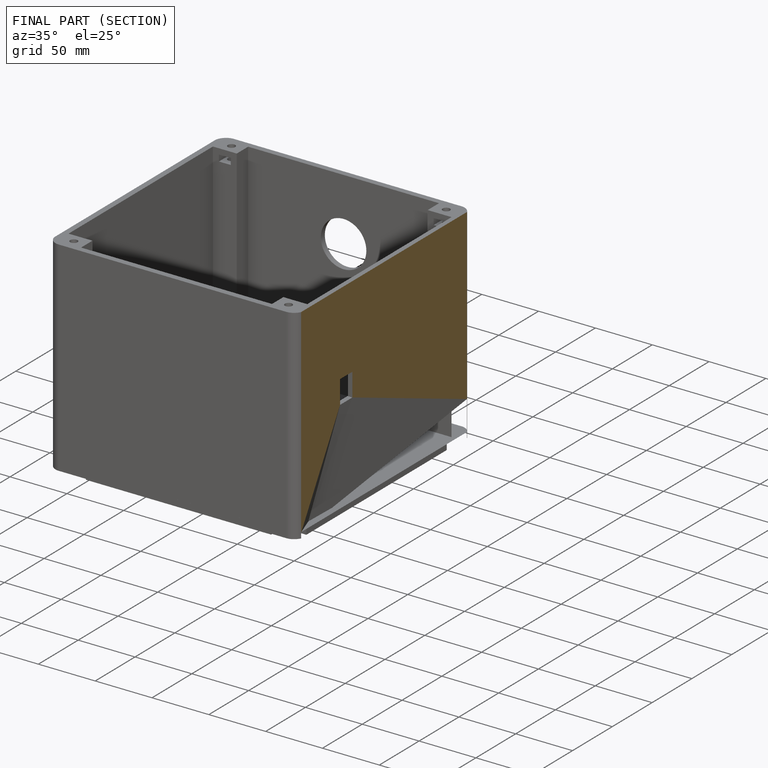
[diagram: finished part — half-section view (interior)]
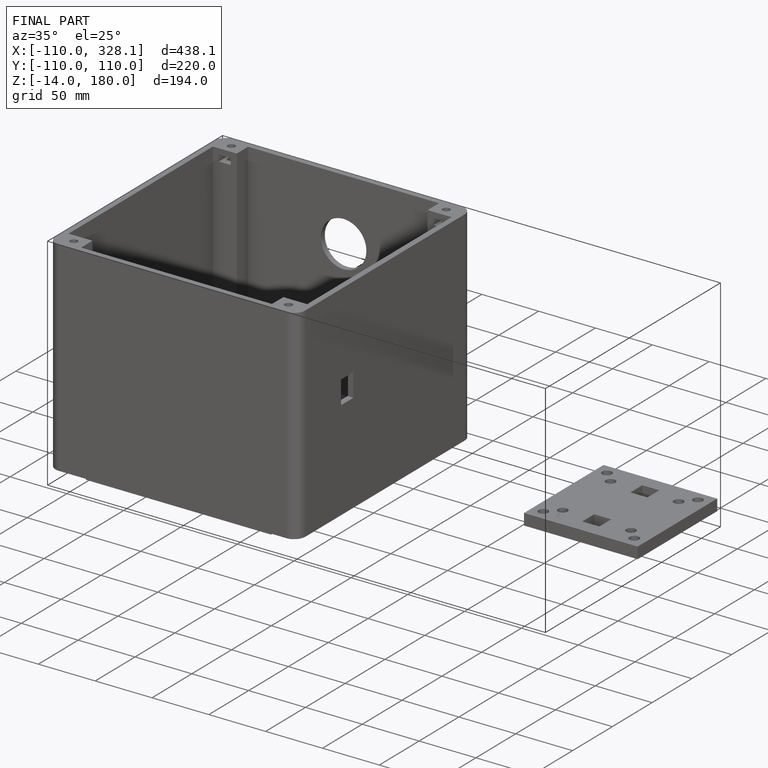
[diagram: finished part — iso view with bounding-box wireframe]
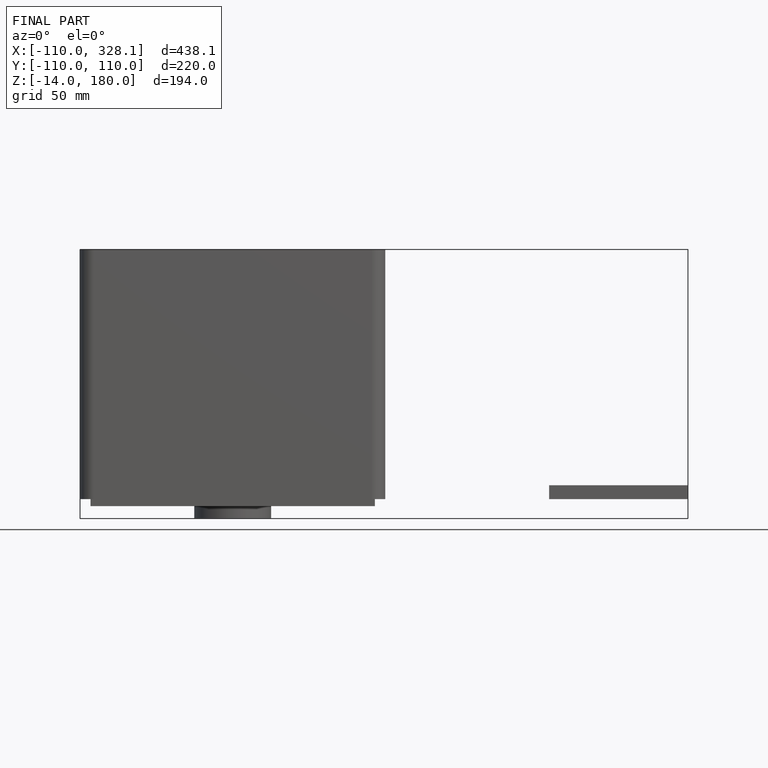
[diagram: finished part — front view with bounding-box wireframe]
